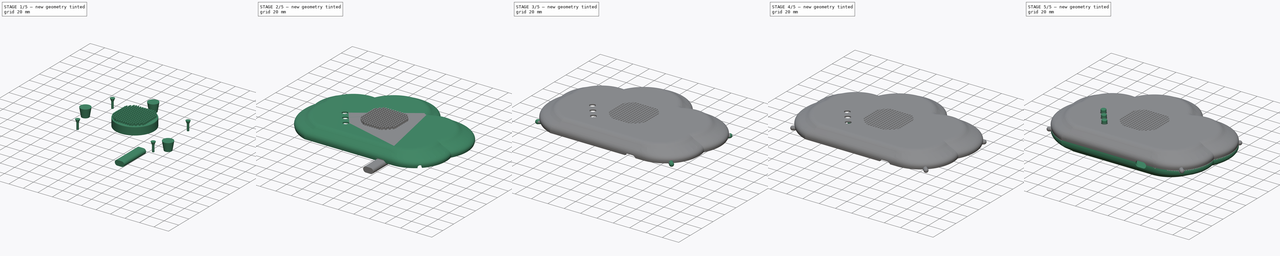
[diagram: build sequence overview — one tinted view per stage of 5, left to right]
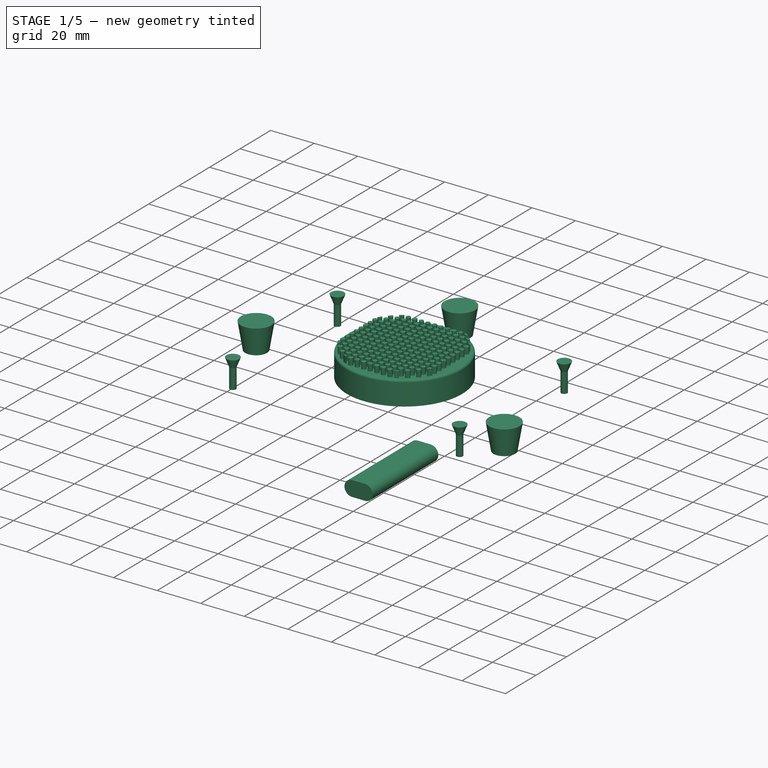
[diagram: stage 1 of 5 — iso view after this stage's code; geometry added in this stage tinted green]
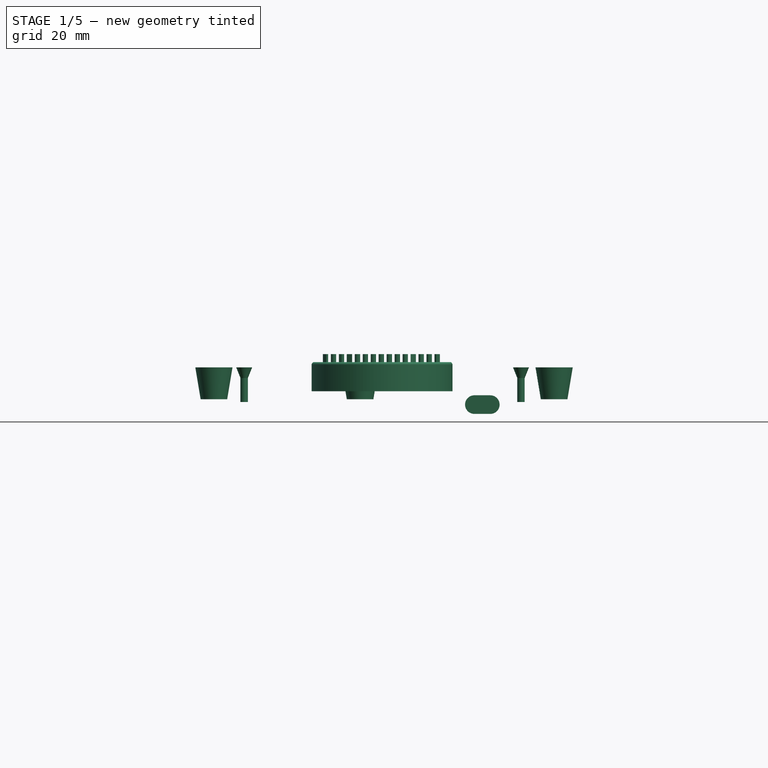
[diagram: stage 1 of 5 — front view after this stage's code; geometry added in this stage tinted green]
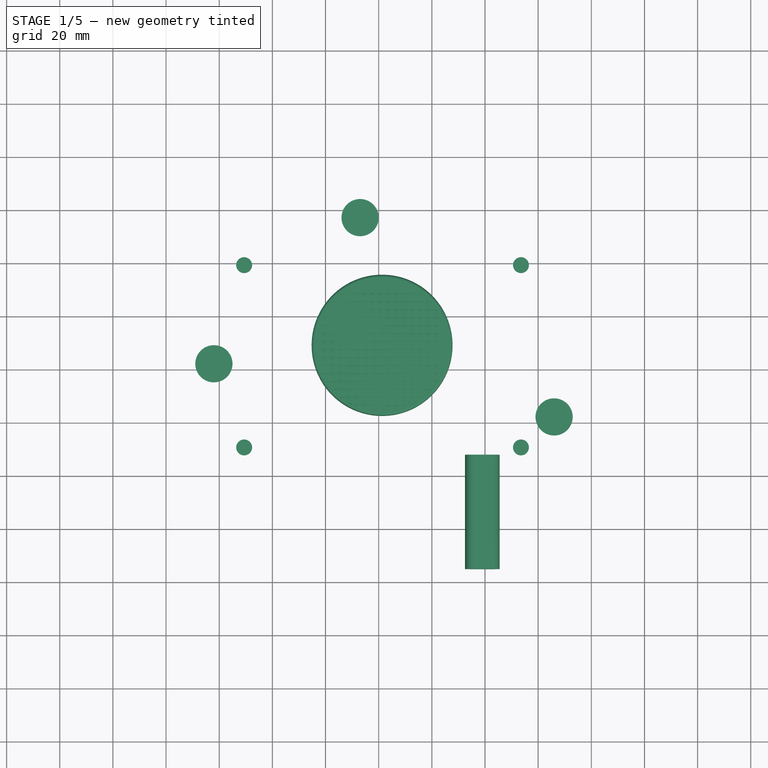
[diagram: stage 1 of 5 — top view after this stage's code; geometry added in this stage tinted green]
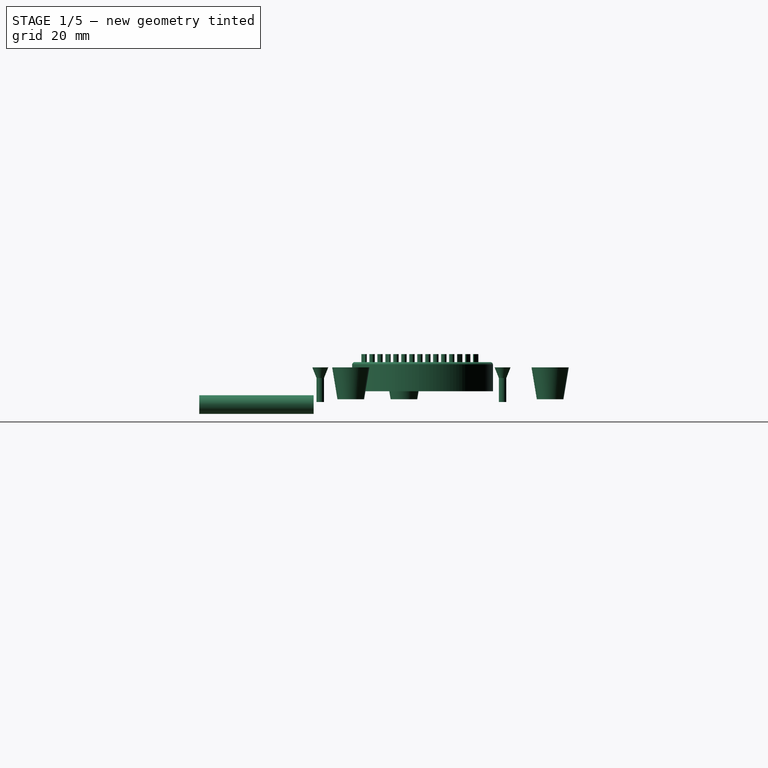
[diagram: stage 1 of 5 — right view after this stage's code; geometry added in this stage tinted green]
FCSTD DOCUMENT  (FreeCAD 0.20R0.20.2)
Label: id4
License: All rights reserved
LicenseURL: http://en.wikipedia.org/wiki/All_rights_reserved
objects: Part::Cylinder×29, Part::FeaturePython×25, Part::Fillet×18, Part::MultiFuse×18, Part::Cut×16, Part::Chamfer×16, Part::Compound×12, Part::Cone×11, Sketcher::SketchObject×8, Part::Box×8, PartDesign::Body×7, Part::Extrusion×6, PartDesign::FeatureBase×5, Part::Thickness×4, Part::Part2DObjectPython×3, Part::Mirroring×2, PartDesign::Boolean×2, Part::Feature×1, Part::Loft×1, PartDesign::Fillet×1, +2 more types
note: 195 computed .brp shape members not serialized (recipe doc carries the construction recipe); baked Part::Feature solids carry a one-line shape summary decoded from their .brp

FEATURE [Sketcher::SketchObject] Sketch001
  FullyConstrained = false
  sketch-geometry (20):
    g0: LineSegment StartX=-55 StartY=37 StartZ=0 EndX=55 EndY=37 EndZ=0
    g1: LineSegment StartX=55 StartY=37 StartZ=0 EndX=55 EndY=-37 EndZ=0
    g2: LineSegment StartX=55 StartY=-37 StartZ=0 EndX=-55 EndY=-37 EndZ=0
    g3: LineSegment StartX=-55 StartY=-37 StartZ=0 EndX=-55 EndY=37 EndZ=0
    g4: ArcOfCircle CenterX=44.9929 CenterY=-9.49778 CenterZ=0 NormalX=0 NormalY=0 NormalZ=1 AngleXU=0 Radius=33.7561 StartAngle=4.71239 EndAngle=6.52933
    g5: LineSegment StartX=-48.6446 StartY=-43.2539 StartZ=0 EndX=44.9929 EndY=-43.2539 EndZ=0
    g6: ArcOfCircle CenterX=-44.1232 CenterY=17.7701 CenterZ=0 NormalX=0 NormalY=0 NormalZ=1 AngleXU=0 Radius=33.7241 StartAngle=1.46841 EndAngle=3.31658
    g7: ArcOfCircle CenterX=-5.77626 CenterY=34.7155 CenterZ=0 NormalX=0 NormalY=0 NormalZ=1 AngleXU=0 Radius=38.6476 StartAngle=0.381366 EndAngle=2.69757
    g8: ArcOfCircle CenterX=46.324 CenterY=16.7365 CenterZ=0 NormalX=0 NormalY=0 NormalZ=1 AngleXU=0 Radius=36.2044 StartAngle=5.76256 EndAngle=8.31881
    g9: GeomPoint X=30.0948 Y=49.0997 Z=0
    g10: GeomPoint X=-40.6763 Y=51.3175 Z=0
    g11: ArcOfCircle CenterX=-35.0014 CenterY=-1.12013 CenterZ=0 NormalX=0 NormalY=0 NormalZ=1 AngleXU=0 Radius=44.2876 StartAngle=2.84322 EndAngle=4.39924
    g12: Circle CenterX=52.46 CenterY=34.46 CenterZ=0 NormalX=0 NormalY=0 NormalZ=1 AngleXU=0 Radius=1.524
    g13: LineSegment StartX=-55 StartY=37 StartZ=0 EndX=55 EndY=-37 EndZ=0
    g14: LineSegment StartX=-55 StartY=-37 StartZ=0 EndX=55 EndY=37 EndZ=0
    g15: Circle CenterX=-52.46 CenterY=34.46 CenterZ=0 NormalX=0 NormalY=0 NormalZ=1 AngleXU=0 Radius=1.524
    g16: Circle CenterX=-52.46 CenterY=-34.46 CenterZ=0 NormalX=0 NormalY=0 NormalZ=1 AngleXU=0 Radius=1.524
    g17: Circle CenterX=52.46 CenterY=-34.46 CenterZ=0 NormalX=0 NormalY=0 NormalZ=1 AngleXU=0 Radius=1.524
    g18: LineSegment StartX=-8.21505 StartY=73.2861 StartZ=0 EndX=-8.21505 EndY=-43.2539 EndZ=0
    g19: LineSegment StartX=82.4688 StartY=18.8131 StartZ=0 EndX=-77.8312 EndY=18.8131 EndZ=0
  constraints (47):
    c: Coincident(g0,g1)
    c: Coincident(g1,g2)
    c: Coincident(g2,g3)
    c: Coincident(g3,g0)
    c: Horizontal(g0)
    c: Horizontal(g2)
    c: Vertical(g1)
    c: Vertical(g3)
    c: Distance(g0) = 110
    c: Distance(g1) = 74
    c: Coincident(g11,g5) = -1.5708
    c: Tangent(g5,g4) = -1.5708
    c: Horizontal(g5)
    c: PointOnObject(g9,g8)
    c: PointOnObject(g9,g7)
    c: PointOnObject(g10,g7)
    c: PointOnObject(g10,g6)
    c: Coincident(g6,g11)
    c: Coincident(g4,g8)
    c: Coincident(g8,g7)
    c: Coincident(g7,g6)
    c: Diameter(g12) = 3.048
    c: Distance(g12,g1) = 2.54
    c: Distance(g12,g0) = 2.54
    c: Coincident(g13,g0)
    c: Coincident(g13,g1)
    c: Coincident(g14,g2)
    c: Coincident(g14,g0)
    c: PointOnObject(g-1,g14)
    c: PointOnObject(g-1,g13)
    c: Distance(g15,g0) = 2.54
    c: Distance(g15,g3) = 2.54
    c: Diameter(g15) = 3.048
    c: Diameter(g16) = 3.048
    c: Distance(g16,g2) = 2.54
    c: Distance(g16,g3) = 2.54
    c: Diameter(g17) = 3.048
    c: Distance(g17,g1) = 2.54
    c: Distance(g17,g2) = 2.54
    c: PointOnObject(g18,g7)
    c: PointOnObject(g18,g5)
    c: Vertical(g18)
    c: Distance(g18) = 116.54
    c: PointOnObject(g19,g8)
    c: PointOnObject(g19,g6)
    c: Horizontal(g19)
    c: Distance(g19) = 160.3
FEATURE [Part::Feature] Feature  label="Плата"
  Placement = pos=(-170,95,7) rot=(0,0,1;0rad)
  shape: bbox 109.2 x 73.67 x 17.65 mm, 7789 faces, 158 solids (baked)
FEATURE [Sketcher::SketchObject] Sketch
  ExternalGeometry = -> [Feature]
  FullyConstrained = false
  MapMode = 2
  Placement = pos=(-170,95,7) rot=(0,0,1;0rad)
  Support = -> [Feature]
  sketch-geometry (2):
    g0: GeomPoint X=119.319 Y=-55.8161 Z=0
    g1: Circle CenterX=119.383 CenterY=-55.8842 CenterZ=0 NormalX=0 NormalY=0 NormalZ=1 AngleXU=0 Radius=1.4
  constraints (1):
    c: Diameter(g1) = 2.8
FEATURE [Part::Extrusion] Extrude
  Base = -> Sketch
  Dir = (0,0,1)
  DirMode = 2
  FaceMakerClass = Part::FaceMakerBullseye
  LengthFwd = 13
  LengthRev = 0
  Placement = pos=(0,0,-5) rot=(0,0,1;0rad)
  Solid = true
  Symmetric = false
FEATURE [Part::Cone] Cone003  label="Конус003"
  Angle = 360
  AttacherType = Attacher::AttachEngine3D
  Height = 5
  Placement = pos=(-50.6174,39.1158,2) rot=(0,0,1;0rad)
  Radius1 = 3
  Radius2 = 1
FEATURE [Part::MultiFuse] Fusion006
  Shapes = -> [Cone003,Extrude]
FEATURE [Sketcher::SketchObject] Sketch004
  FullyConstrained = false
  MapMode = 2
  Placement = pos=(40,-49,12) rot=(1,0,0;1.5708rad)
  sketch-geometry (6):
    g0: ArcOfCircle CenterX=-3.00386 CenterY=0 CenterZ=0 NormalX=0 NormalY=0 NormalZ=1 AngleXU=0 Radius=3.5 StartAngle=1.5708 EndAngle=4.71239
    g1: ArcOfCircle CenterX=2.99652 CenterY=-3.5e-15 CenterZ=0 NormalX=0 NormalY=0 NormalZ=1 AngleXU=0 Radius=3.5 StartAngle=4.71239 EndAngle=7.85398
    g2: LineSegment StartX=-3.00386 StartY=-3.5 StartZ=0 EndX=2.99652 EndY=-3.5 EndZ=0
    g3: LineSegment StartX=2.99652 StartY=3.5 StartZ=0 EndX=-3.00386 EndY=3.5 EndZ=0
    g4: LineSegment StartX=-0.0553689 StartY=3.5 StartZ=0 EndX=-0.0553689 EndY=-3.5 EndZ=0
    g5: LineSegment StartX=-6.50367 StartY=0.0363217 StartZ=0 EndX=6.49633 EndY=0.0363217 EndZ=0
  constraints (15):
    c: Tangent(g0,g2) = -1.5708
    c: Tangent(g2,g1) = -1.5708
    c: Tangent(g1,g3) = -1.5708
    c: Tangent(g3,g0) = -1.5708
    c: Equal(g0,g1)
    c: Horizontal(g2)
    c: PointOnObject(g0,g-1)
    c: PointOnObject(g4,g3)
    c: PointOnObject(g4,g2)
    c: Vertical(g4)
    c: Distance(g4) = 7
    c: PointOnObject(g5,g0)
    c: PointOnObject(g5,g1)
    c: Horizontal(g5)
    c: Distance(g5) = 13
FEATURE [Part::Extrusion] Extrude003  label="Extrude006"
  Base = -> Sketch004
  Dir = (0,-1,2e-16)
  DirMode = 2
  FaceMakerClass = Part::FaceMakerBullseye
  LengthFwd = 43
  LengthRev = 0
  Placement = pos=(-1,17,2) rot=(0,0,1;0rad)
  Solid = true
  Symmetric = false
FEATURE [Part::Cone] Cone007  label="Конус007"
  Angle = 360
  AttacherType = Attacher::AttachEngine3D
  Height = 12
  Placement = pos=(-62,2,16) rot=(0,0,1;0rad)
  Radius1 = 5
  Radius2 = 7
FEATURE [Part::FeaturePython] Screw002  label="M3x10-Винт"  # Fasteners workbench fastener (typed FeaturePython)
  Placement = pos=(-62,2,15) rot=(0,1,0;3.14159rad)
  diameter = 1
  invert = false
  leftHanded = false
  length = 4
  lengthCustom = 10
  matchOuter = false
  offset = 0
  thread = true
  type = 22
FEATURE [Part::Cut] Cut007
  Base = -> Cone007
  Tool = -> Screw002
FEATURE [Part::Cone] Cone008  label="Конус008"
  Angle = 360
  AttacherType = Attacher::AttachEngine3D
  Height = 12
  Placement = pos=(-62,2,16) rot=(0,0,1;0rad)
  Radius1 = 5
  Radius2 = 7
FEATURE [Part::FeaturePython] Screw005  label="M3x10-Винт003"  # Fasteners workbench fastener (typed FeaturePython)
  Placement = pos=(-62,2,15) rot=(0,1,0;3.14159rad)
  diameter = 1
  invert = false
  leftHanded = false
  length = 4
  lengthCustom = 10
  matchOuter = false
  offset = 0
  thread = true
  type = 22
FEATURE [Part::Cut] Cut010
  Base = -> Cone008
  Placement = pos=(128,-20,0) rot=(0,0,1;0rad)
  Tool = -> Screw005
FEATURE [Part::Cone] Cone009  label="Конус009"
  Angle = 360
  AttacherType = Attacher::AttachEngine3D
  Height = 12
  Placement = pos=(-62,2,16) rot=(0,0,1;0rad)
  Radius1 = 5
  Radius2 = 7
FEATURE [Part::FeaturePython] Screw007  label="M3x10-Винт005"  # Fasteners workbench fastener (typed FeaturePython)
  Placement = pos=(-62,2,15) rot=(0,1,0;3.14159rad)
  diameter = 1
  invert = false
  leftHanded = false
  length = 4
  lengthCustom = 10
  matchOuter = false
  offset = 0
  thread = true
  type = 22
FEATURE [Part::Cut] Cut012
  Base = -> Cone009
  Placement = pos=(55,55,0) rot=(0,0,1;0rad)
  Tool = -> Screw007
FEATURE [Part::MultiFuse] Fusion012
  Shapes = -> [Cut012,Cut010,Cut007]
FEATURE [Part::FeaturePython] Clone009  label="Fusion015"  # Draft clone (typed FeaturePython)
  AttacherType = Attacher::AttachEngine3D
  Fuse = false
  Objects = -> [Fusion006]
  Scale = (1,1,1)
FEATURE [Part::Mirroring] Part__Mirroring001  label="Fusion015 (Mirror #2)"
  Base = (0,0,15)
  Normal = (0,0,1)
  Source = -> Clone009
FEATURE [PartDesign::FeatureBase] Clone010
  BaseFeature = -> Part__Mirroring001
  Placement = pos=(104.15,0,0) rot=(0,0,1;0rad)
FEATURE [PartDesign::Body] Body008  label="Body011"
  BaseFeature = -> Part__Mirroring001
  Group = -> [Clone010]
  Origin = -> Origin008
  Tip = -> Clone010
FEATURE [PartDesign::FeatureBase] Clone011
  BaseFeature = -> Part__Mirroring001
  Placement = pos=(104.15,-68.6,0) rot=(0,0,1;0rad)
FEATURE [PartDesign::Body] Body009  label="Body012"
  BaseFeature = -> Part__Mirroring001
  Group = -> [Clone011]
  Origin = -> Origin009
  Tip = -> Clone011
FEATURE [PartDesign::FeatureBase] Clone012
  BaseFeature = -> Part__Mirroring001
  Placement = pos=(0,-68.6,0) rot=(0,0,1;0rad)
FEATURE [PartDesign::Body] Body010  label="Body013"
  BaseFeature = -> Part__Mirroring001
  Group = -> [Clone012]
  Origin = -> Origin010
  Tip = -> Clone012
FEATURE [Part::Compound] Compound008
  Links = -> [Part__Mirroring001,Body008,Body009,Body010]
FEATURE [Sketcher::SketchObject] Sketch013
  FullyConstrained = true
  Placement = pos=(0,0,0) rot=(1,0,0;1.5708rad)
  sketch-geometry (10):
    g0: LineSegment StartX=0 StartY=0 StartZ=0 EndX=-25 EndY=0 EndZ=0
    g1: LineSegment StartX=-25 StartY=0 StartZ=0 EndX=-25 EndY=4 EndZ=0
    g2: LineSegment StartX=-25 StartY=4 StartZ=0 EndX=-23 EndY=4 EndZ=0
    g3: LineSegment StartX=-23 StartY=4 StartZ=0 EndX=-21 EndY=11 EndZ=0
    g4: LineSegment StartX=-21 StartY=11 StartZ=0 EndX=0 EndY=11 EndZ=0
    g5: LineSegment StartX=-21 StartY=11 StartZ=0 EndX=-21 EndY=0 EndZ=0
    g6: LineSegment StartX=-21 StartY=11 StartZ=0 EndX=-8 EndY=11 EndZ=0
    g7: LineSegment StartX=-8 StartY=11 StartZ=0 EndX=-8 EndY=17 EndZ=0
    g8: LineSegment StartX=-8 StartY=17 StartZ=0 EndX=0 EndY=17 EndZ=0
    g9: LineSegment StartX=0 StartY=17 StartZ=0 EndX=0 EndY=0 EndZ=0
  constraints (29):
    c: Coincident(g0,g-1)
    c: PointOnObject(g0,g-1)
    c: Coincident(g1,g0)
    c: Vertical(g1)
    c: Distance(g0) = 25
    c: Distance(g1) = 4
    c: Coincident(g2,g1)
    c: Horizontal(g2)
    c: Distance(g2) = 2
    c: Coincident(g3,g2)
    c: Coincident(g4,g3)
    c: PointOnObject(g4,g-2)
    c: Horizontal(g4)
    c: Distance(g4) = 21
    c: Coincident(g5,g3)
    c: PointOnObject(g5,g0)
    c: Vertical(g5)
    c: Distance(g5) = 11
    c: Coincident(g6,g3)
    c: PointOnObject(g6,g4)
    c: Distance(g6,g4) = 8
    c: Coincident(g7,g6)
    c: Vertical(g7)
    c: Distance(g7) = 6
    c: Coincident(g8,g7)
    c: Horizontal(g8)
    c: PointOnObject(g8,g-2)
    c: Coincident(g9,g8)
    c: Coincident(g9,g0)
FEATURE [Part::Revolution] Revolve
  Angle = 360
  Axis = (0,0,1)
  Base = (0,0,0)
  FaceMakerClass = Part::FaceMakerBullseye
  Solid = true
  Source = -> Sketch013
  Symmetric = false
FEATURE [Part::Fillet] Fillet017
  Base = -> Revolve
  Edges = 2 edges r=1: [Edge5,Edge8]
FEATURE [Part::Fillet] Fillet018
  Base = -> Fillet017
  Edges = 1 edges r=1: [Edge6]
FEATURE [Part::Fillet] Fillet019
  Base = -> Fillet018
  Edges = 1 edges r=2: [Edge8]
FEATURE [Part::Cone] Cone010  label="Конус010"
  Angle = 360
  AttacherType = Attacher::AttachEngine3D
  Height = 5
  Radius1 = 19
  Radius2 = 15
FEATURE [Part::Cut] Cut014
  Base = -> Fillet019
  Tool = -> Cone010
FEATURE [Part::Fillet] Fillet020  label="динамик"
  Base = -> Cut014
  Edges = 1 edges r=1: [Edge9]
  Placement = pos=(1.28,9,28) rot=(0,1,0;3.14159rad)
FEATURE [Sketcher::SketchObject] Sketch014
  FullyConstrained = true
  MapMode = 2
  Placement = pos=(1.28,9,28) rot=(0,1,0;3.14159rad)
  Support = -> [Fillet020]
  sketch-geometry (1):
    g0: Circle CenterX=0 CenterY=0 CenterZ=0 NormalX=0 NormalY=0 NormalZ=1 AngleXU=0 Radius=25.5
  constraints (2):
    c: Coincident(g0,g-1)
    c: Diameter(g0) = 51
FEATURE [Part::Extrusion] Extrude005  label="Extrude008"
  Base = -> Sketch014
  Dir = (0,1e-16,-1)
  DirMode = 2
  FaceMakerClass = Part::FaceMakerBullseye
  LengthFwd = 10
  LengthRev = 0
  Solid = true
  Symmetric = false
FEATURE [Part::Thickness] Thickness003
  Faces = -> Extrude005 [Face3]
  Intersection = false
  Join = 0
  Mode = 0
  SelfIntersection = false
  Value = 1
FEATURE [Part::Cylinder] Cylinder027  label="Цилиндр027"
  Angle = 360
  AttacherType = Attacher::AttachEngine3D
  FirstAngle = 0
  Height = 5
  Radius = 25
  SecondAngle = 0
FEATURE [Part::Cylinder] Cylinder028  label="Цилиндр028"
  Angle = 360
  AttacherType = Attacher::AttachEngine3D
  FirstAngle = 0
  Height = 10
  Radius = 1
  SecondAngle = 0
FEATURE [Part::FeaturePython] Array  # Draft array (typed FeaturePython)
  AlwaysSyncPlacement = false
  Angle = 360
  ArrayType = 0
  Axis = (0,0,1)
  Base = -> Cylinder028
  Center = (0,0,0)
  Count = 225
  ExpandArray = false
  Fuse = false
  IntervalAxis = (0,0,0)
  IntervalX = (3,0,0)
  IntervalY = (0,3,0)
  IntervalZ = (0,0,100)
  NumberCircles = 3
  NumberPolar = 5
  NumberX = 15
  NumberY = 15
  NumberZ = 1
  Placement = pos=(-21,-22,-2) rot=(0,0,1;0rad)
  PlacementList = 225 placements: [(0,0,0),(0,3,0),(0,6,0),(0,9,0),(0,12,0),(0,15,0),(0,18,0),(0,21,0),(0,24,0),(0,27,0),(0,30,0),(0,33,0),(0,36,0),(0,39,0),(0,42,0),(3,0,0),(3,3,0),(3,6,0),(3,9,0),(3,12,0),(3,15,0),(3,18,0),(3,21,0),(3,24,0),(3,27,0),(3,30,0),(3,33,0),(3,36,0),(3,39,0),(3,42,0),(6,0,0),(6,3,0),(6,6,0),(6,9,0),(6,12,0),(6,15,0),(6,18,0),(6,21,0),(6,24,0),(6,27,0),(6,30,0),(6,33,0),(6,36,0),(6,39,0),(6,42,0),+180 more]
  RadialDistance = 50
  ScaleList = (225) [(1,1,1),(1,1,1),(1,1,1),(1,1,1),(1,1,1),(1,1,1),(1,1,1),(1,1,1),(1,1,1),(1,1,1),(1,1,1),(1,1,1),(1,1,1),(1,1,1),(1,1,1),(1,1,1),(1,1,1),(1,1,1),+207 more]
  Symmetry = 1
  TangentialDistance = 25
FEATURE [Part::MultiCommon] Common
  Placement = pos=(1,9,28) rot=(0,0,1;0rad)
  Shapes = -> [Cylinder027,Array]
FEATURE [Part::FeaturePython] Clone013  label="Common001"  # Draft clone (typed FeaturePython)
  AttacherType = Attacher::AttachEngine3D
  Fuse = false
  Objects = -> [Common]
  Placement = pos=(1,9,28) rot=(0,0,1;0rad)
  Scale = (1,1,1)
FEATURE [Part::Cut] Cut016
  Base = -> Thickness003
  Placement = pos=(0,0,1) rot=(0,0,1;0rad)
  Tool = -> Common
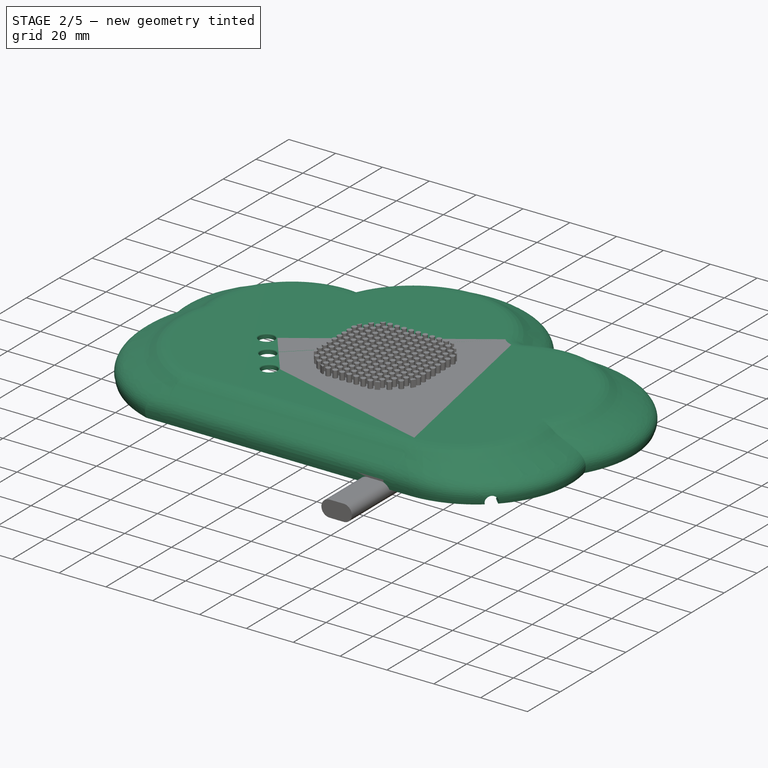
[diagram: stage 2 of 5 — iso view after this stage's code; geometry added in this stage tinted green]
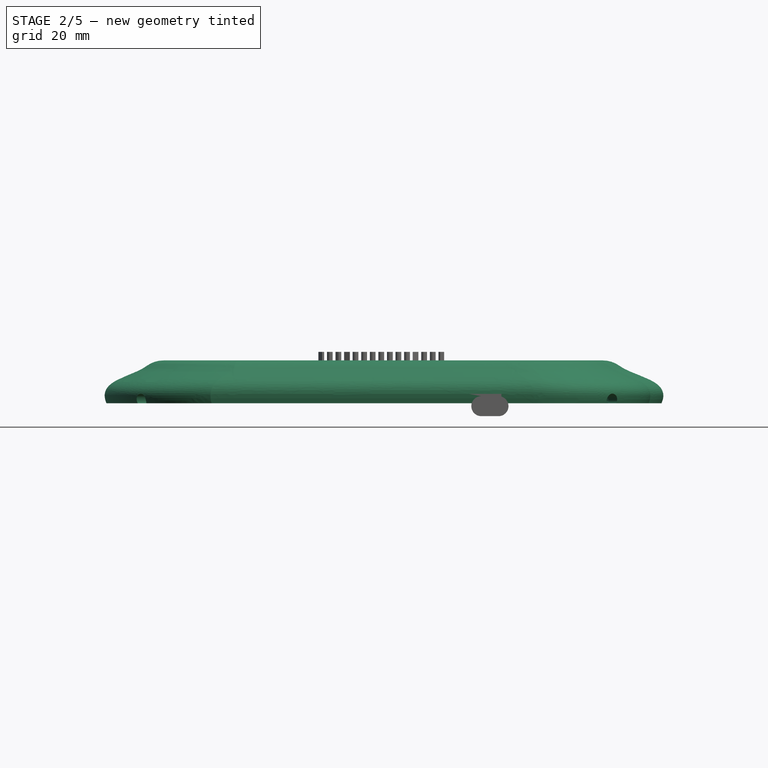
[diagram: stage 2 of 5 — front view after this stage's code; geometry added in this stage tinted green]
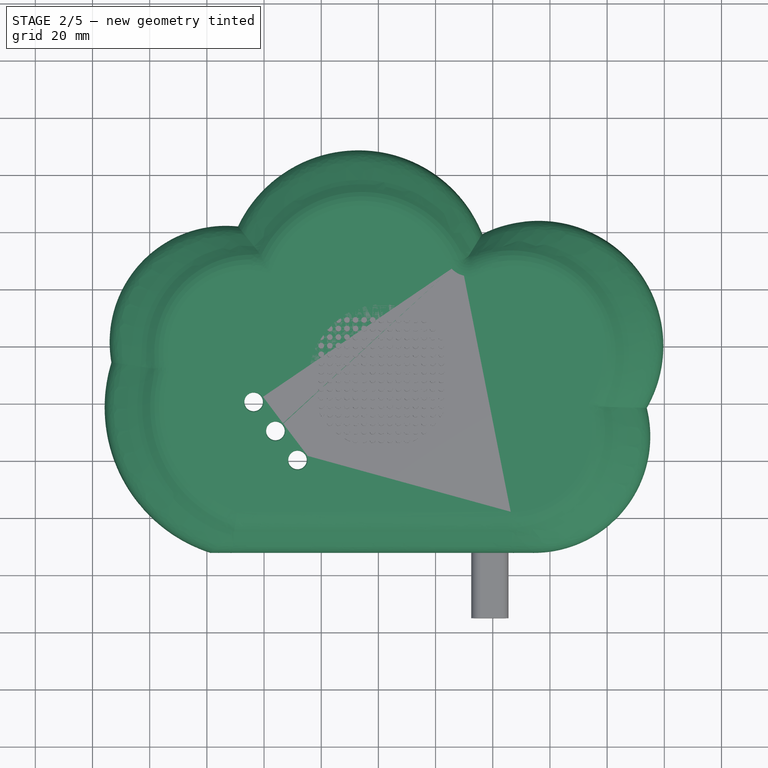
[diagram: stage 2 of 5 — top view after this stage's code; geometry added in this stage tinted green]
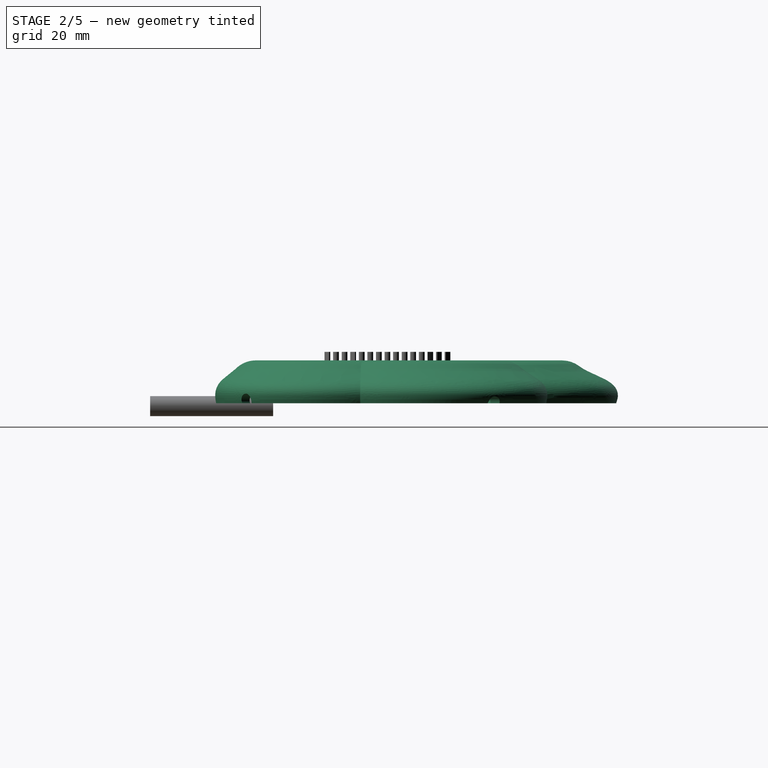
[diagram: stage 2 of 5 — right view after this stage's code; geometry added in this stage tinted green]
FEATURE [Part::Part2DObjectPython] Clone2D005  label="Sketch001 (2D)005"  # Draft 2D object (typed FeaturePython)
  Fuse = false
  Objects = -> [Sketch001]
  Placement = pos=(0,0,5) rot=(0,0,1;0rad)
  Scale = (1.1,1.1,1.1)
FEATURE [Part::Part2DObjectPython] Clone2D006  label="Sketch001 (2D)006"  # Draft 2D object (typed FeaturePython)
  Fuse = false
  Objects = -> [Sketch001]
  Placement = pos=(0,0,10) rot=(0,0,1;0rad)
  Scale = (1.2,1.2,1.2)
FEATURE [Part::Part2DObjectPython] Clone2D007  label="Sketch001 (2D)006 (2D)"  # Draft 2D object (typed FeaturePython)
  Fuse = false
  Objects = -> [Clone2D006]
  Placement = pos=(0,0,15) rot=(0,0,1;0rad)
  Scale = (1,1,1)
FEATURE [Part::Loft] Loft
  Closed = false
  MaxDegree = 5
  Ruled = false
  Sections = -> [Sketch001,Clone2D005,Clone2D006,Clone2D007]
  Solid = true
FEATURE [PartDesign::FeatureBase] BaseFeature
  BaseFeature = -> Loft
FEATURE [PartDesign::Fillet] Fillet
  Base = -> BaseFeature [Face7]
  BaseFeature = -> BaseFeature
  Radius = 10
  SupportTransform = false
  UseAllEdges = false
FEATURE [PartDesign::Body] Body
  BaseFeature = -> Loft
  Group = -> [BaseFeature,Fillet]
  Origin = -> Origin
  Tip = -> Fillet
FEATURE [Part::FeaturePython] Clone  label="Body001"  # Draft clone (typed FeaturePython)
  AttacherType = Attacher::AttachEngine3D
  Fuse = false
  Objects = -> [Body]
  Placement = pos=(0,0,2) rot=(0,0,1;0rad)
  Scale = (0.95,0.95,0.95)
FEATURE [Part::Cut] Cut
  Base = -> Body
  Tool = -> Clone
FEATURE [Part::Mirroring] Part__Mirroring  label="Cut (Mirror #1)"
  Base = (0,0,20)
  Normal = (0,0,1)
  Placement = pos=(0,0,-10) rot=(0,0,1;0rad)
  Source = -> Cut
FEATURE [PartDesign::FeatureBase] BaseFeature001
  BaseFeature = -> Part__Mirroring
FEATURE [PartDesign::Body] Body001  label="Крышка"
  BaseFeature = -> Part__Mirroring
  Group = -> [BaseFeature001]
  Origin = -> Origin001
  Placement = pos=(0,0,-10) rot=(0,0,1;0rad)
  Tip = -> BaseFeature001
FEATURE [Part::Cylinder] Cylinder  label="Цилиндр"
  Angle = 360
  AttacherType = Attacher::AttachEngine3D
  FirstAngle = 0
  Height = 22
  Placement = pos=(-43.635,0.385,10.17) rot=(0,0,1;0rad)
  Radius = 3
  SecondAngle = 0
FEATURE [Part::Cylinder] Cylinder001  label="Цилиндр001"
  Angle = 360
  AttacherType = Attacher::AttachEngine3D
  FirstAngle = 0
  Height = 7
  Placement = pos=(-43.64,0.39,27.17) rot=(0,0,1;0rad)
  Radius = 3
  SecondAngle = 0
FEATURE [Part::Fillet] Fillet001
  Base = -> Cylinder001
  Edges = 1 edges r=1: [Edge3]
FEATURE [Part::Fillet] Fillet002
  Base = -> Cylinder
  Edges = 1 edges r=0.5: [Edge2]
FEATURE [Part::Cone] Cone  label="Конус"
  Angle = 360
  AttacherType = Attacher::AttachEngine3D
  Height = 10
  Placement = pos=(-43.64,0.39,17.17) rot=(0,0,1;0rad)
  Radius1 = 3
  Radius2 = 4
FEATURE [Part::MultiFuse] Fusion001  label="кнопка 1"
  Shapes = -> [Fillet001,Fillet002,Cone]
FEATURE [Part::Cone] Cone001  label="Конус001"
  Angle = 360
  AttacherType = Attacher::AttachEngine3D
  Height = 10
  Placement = pos=(-43.64,0.39,17.17) rot=(0,0,1;0rad)
  Radius1 = 3
  Radius2 = 4
FEATURE [Part::Cylinder] Cylinder002  label="Цилиндр002"
  Angle = 360
  AttacherType = Attacher::AttachEngine3D
  FirstAngle = 0
  Height = 22
  Placement = pos=(-43.635,0.385,10.17) rot=(0,0,1;0rad)
  Radius = 3
  SecondAngle = 0
FEATURE [Part::Cylinder] Cylinder003  label="Цилиндр003"
  Angle = 360
  AttacherType = Attacher::AttachEngine3D
  FirstAngle = 0
  Height = 7
  Placement = pos=(-43.64,0.39,27.17) rot=(0,0,1;0rad)
  Radius = 3
  SecondAngle = 0
FEATURE [Part::Fillet] Fillet003
  Base = -> Cylinder003
  Edges = 1 edges r=1: [Edge3]
FEATURE [Part::Fillet] Fillet004
  Base = -> Cylinder002
  Edges = 1 edges r=0.5: [Edge2]
FEATURE [Part::MultiFuse] Fusion002  label="кнопка 2"
  Placement = pos=(7.62,-10.16,0) rot=(0,0,1;0rad)
  Shapes = -> [Fillet003,Fillet004,Cone001]
FEATURE [Part::Cone] Cone002  label="Конус002"
  Angle = 360
  AttacherType = Attacher::AttachEngine3D
  Height = 10
  Placement = pos=(-43.64,0.39,17.17) rot=(0,0,1;0rad)
  Radius1 = 3
  Radius2 = 4
FEATURE [Part::Cylinder] Cylinder004  label="Цилиндр004"
  Angle = 360
  AttacherType = Attacher::AttachEngine3D
  FirstAngle = 0
  Height = 22
  Placement = pos=(-43.635,0.385,10.17) rot=(0,0,1;0rad)
  Radius = 3
  SecondAngle = 0
FEATURE [Part::Cylinder] Cylinder005  label="Цилиндр005"
  Angle = 360
  AttacherType = Attacher::AttachEngine3D
  FirstAngle = 0
  Height = 7
  Placement = pos=(-43.64,0.39,27.17) rot=(0,0,1;0rad)
  Radius = 3
  SecondAngle = 0
FEATURE [Part::Fillet] Fillet005
  Base = -> Cylinder005
  Edges = 1 edges r=1: [Edge3]
FEATURE [Part::Fillet] Fillet006
  Base = -> Cylinder004
  Edges = 1 edges r=0.5: [Edge2]
FEATURE [Part::MultiFuse] Fusion003  label="кнопка 3"
  Placement = pos=(15.342,-20.315,0) rot=(0,0,1;0rad)
  Shapes = -> [Fillet005,Fillet006,Cone002]
FEATURE [Sketcher::SketchObject] Sketch002
  ExternalGeometry = -> [Fusion001,Fusion002,Fusion003]
  FullyConstrained = true
  MapMode = 5
  Placement = pos=(0,0,34.17) rot=(0,0,1;0rad)
  Support = -> [Fusion001]
  sketch-geometry (3):
    g0: Circle CenterX=-43.64 CenterY=0.39 CenterZ=0 NormalX=0 NormalY=0 NormalZ=1 AngleXU=0 Radius=3.25
    g1: Circle CenterX=-28.298 CenterY=-19.925 CenterZ=0 NormalX=0 NormalY=0 NormalZ=1 AngleXU=0 Radius=3.25
    g2: Circle CenterX=-36.02 CenterY=-9.77 CenterZ=0 NormalX=0 NormalY=0 NormalZ=1 AngleXU=0 Radius=3.25
  constraints (6):
    c: Coincident(g0,g-3)
    c: Coincident(g1,g-5)
    c: Coincident(g2,g-4)
    c: Diameter(g0) = 6.5
    c: Diameter(g2) = 6.5
    c: Diameter(g1) = 6.5
FEATURE [Part::Extrusion] Extrude001  label="Extrude004"
  Base = -> Sketch002
  Dir = (0,0,1)
  DirMode = 2
  FaceMakerClass = Part::FaceMakerBullseye
  LengthFwd = 10
  LengthRev = 0
  Placement = pos=(0,0,-8) rot=(0,0,1;0rad)
  Solid = true
  Symmetric = false
FEATURE [Part::Cut] Cut001  label="Крышка001"
  Base = -> Body001
  Tool = -> Extrude001
FEATURE [Part::Fillet] Fillet007  label="крышка"
  Base = -> Cut001
  Edges = 3 edges r=0.5: [Edge38,Edge39,Edge40]
FEATURE [Part::Cylinder] Cylinder011  label="Цилиндр011"
  Angle = 360
  AttacherType = Attacher::AttachEngine3D
  FirstAngle = 0
  Height = 16
  Placement = pos=(-6.89,92.95,14.89) rot=(1,0,0;1.5708rad)
  Radius = 2.5
  SecondAngle = 0
FEATURE [Part::Cylinder] Cylinder012  label="Цилиндр012"
  Angle = 360
  AttacherType = Attacher::AttachEngine3D
  FirstAngle = 0
  Height = 16
  Placement = pos=(95.11,48.95,14.89) rot=(0.851836,-0.370389,-0.370389;1.73047rad)
  Radius = 2.5
  SecondAngle = 0
FEATURE [Part::Cylinder] Cylinder013  label="Цилиндр013"
  Angle = 360
  AttacherType = Attacher::AttachEngine3D
  FirstAngle = 0
  Height = 16
  Placement = pos=(-83.89,53.95,14.89) rot=(0.8634,0.35675,0.35675;1.71715rad)
  Radius = 2.5
  SecondAngle = 0
FEATURE [Part::Cylinder] Cylinder014  label="Цилиндр014"
  Angle = 360
  AttacherType = Attacher::AttachEngine3D
  FirstAngle = 0
  Height = 16
  Placement = pos=(-86.89,-39,15.89) rot=(0.313789,0.671393,0.671393;2.53348rad)
  Radius = 2.5
  SecondAngle = 0
FEATURE [Part::Cylinder] Cylinder015  label="Цилиндр015"
  Angle = 360
  AttacherType = Attacher::AttachEngine3D
  FirstAngle = 0
  Height = 16
  Placement = pos=(75.11,-35,15.89) rot=(0.857931,0.363287,0.363287;1.72343rad)
  Radius = 2.5
  SecondAngle = 0
FEATURE [Part::Compound] Compound003
  Links = -> [Cylinder011,Cylinder012,Cylinder013,Cylinder014,Cylinder015]
FEATURE [Part::Cut] Cut003  label="крышка001"
  Base = -> Fillet007
  Tool = -> Compound003
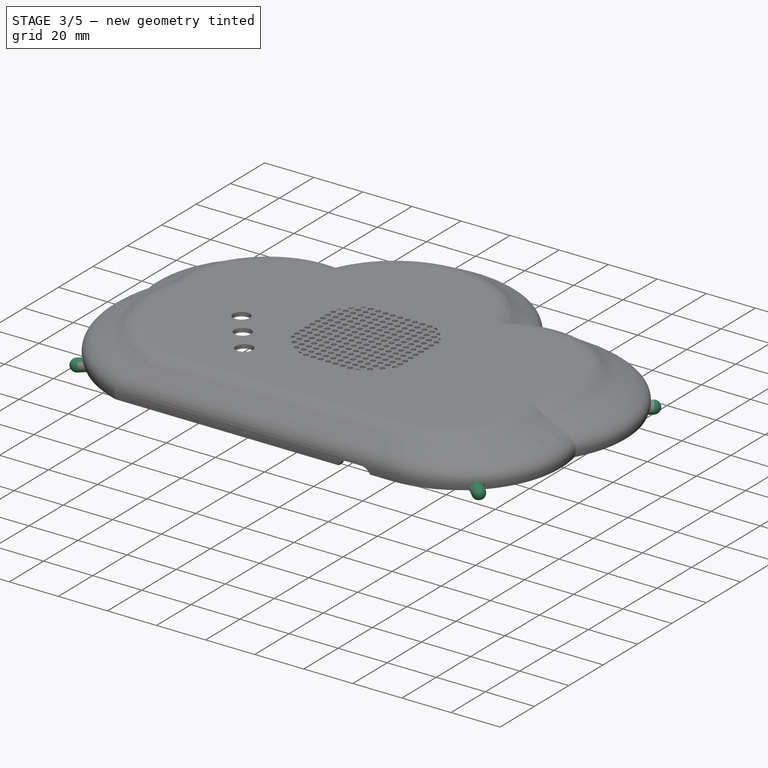
[diagram: stage 3 of 5 — iso view after this stage's code; geometry added in this stage tinted green]
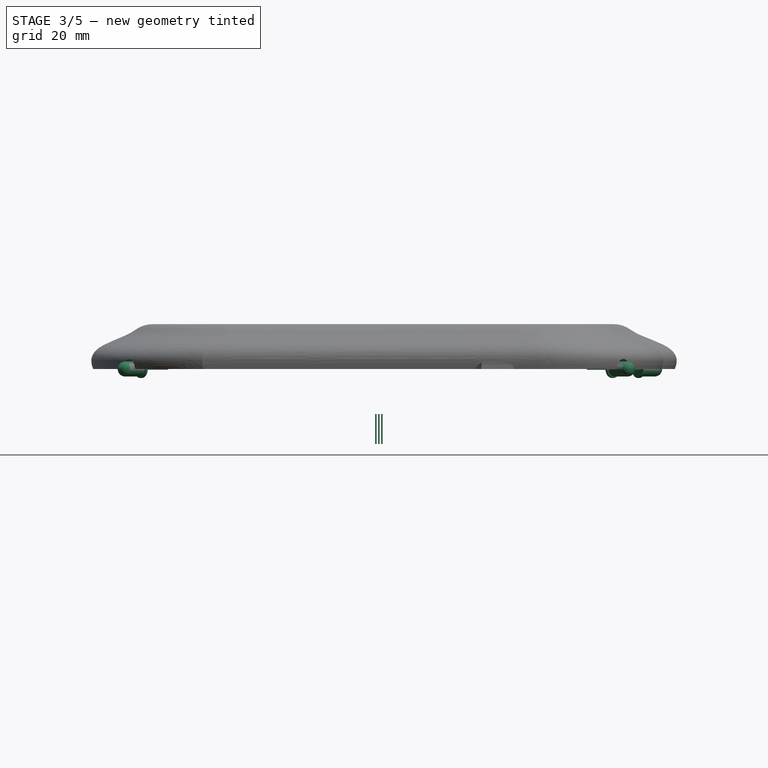
[diagram: stage 3 of 5 — front view after this stage's code; geometry added in this stage tinted green]
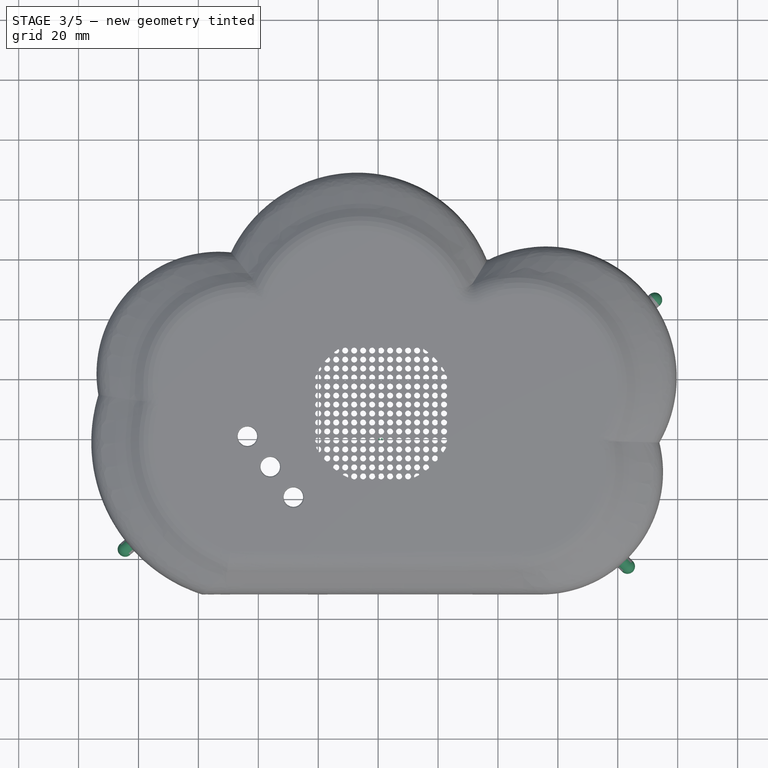
[diagram: stage 3 of 5 — top view after this stage's code; geometry added in this stage tinted green]
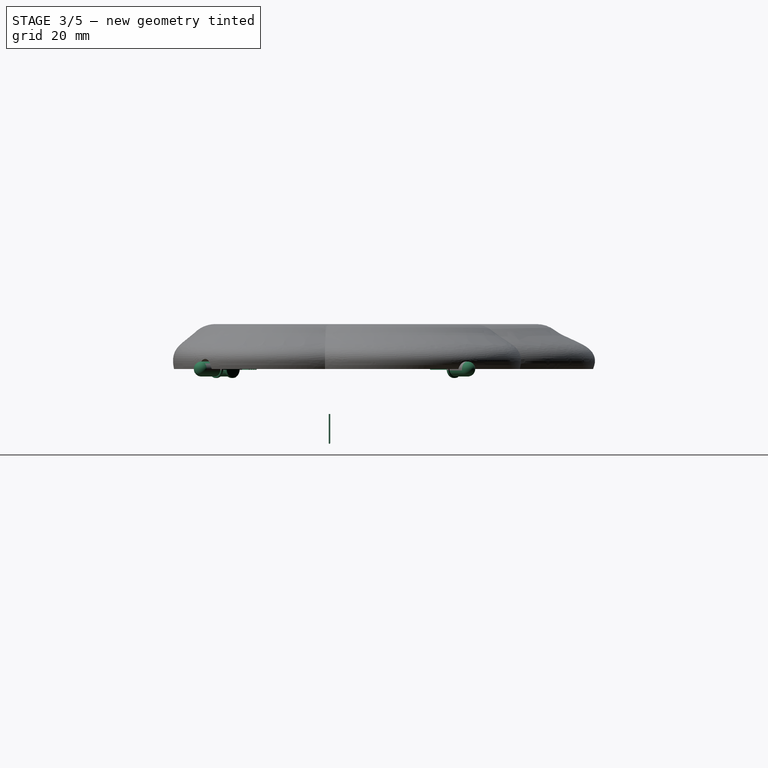
[diagram: stage 3 of 5 — right view after this stage's code; geometry added in this stage tinted green]
FEATURE [Part::Cut] Cut005  label="крышка002"
  Base = -> Cut003
  Tool = -> Extrude003
FEATURE [Part::FeaturePython] Connect001  label="крышка003"  # WARN: FeaturePython — macro-defined, semantics opaque (R4)
  Objects = -> [Fusion012,Cut005]
  Tolerance = 0
FEATURE [Part::Cylinder] Cylinder019  label="Цилиндр019"
  Angle = 360
  AttacherType = Attacher::AttachEngine3D
  FirstAngle = 0
  Height = 10
  Radius = 2.5
  SecondAngle = 0
FEATURE [Part::Fillet] Fillet011
  Base = -> Cylinder019
  Edges = 1 edges r=2.5: [Edge3]
FEATURE [Part::Cylinder] Cylinder020  label="Цилиндр020"
  Angle = 360
  AttacherType = Attacher::AttachEngine3D
  FirstAngle = 0
  Height = 1
  Radius = 3
  SecondAngle = 0
FEATURE [Part::Box] Box  label="Куб"
  AttacherType = Attacher::AttachEngine3D
  Height = 10
  Length = 0.5
  Placement = pos=(-2,-0.25,-10) rot=(0,0,1;0rad)
  Width = 0.5
FEATURE [Part::Fillet] Fillet012
  Base = -> Cylinder020
  Edges = 2 edges r=0.2: [Edge2,Edge3]
FEATURE [Part::Chamfer] Chamfer
  Base = -> Box
  Edges = 1 edges r=0.2: [Edge9]
FEATURE [Part::Chamfer] Chamfer001
  Base = -> Chamfer
  Edges = 1 edges r=0.2: [Edge14]
FEATURE [Part::Box] Box001  label="Куб001"
  AttacherType = Attacher::AttachEngine3D
  Height = 10
  Length = 0.5
  Placement = pos=(-2,-0.25,-10) rot=(0,0,1;0rad)
  Width = 0.5
FEATURE [Part::Chamfer] Chamfer002
  Base = -> Box001
  Edges = 1 edges r=0.2: [Edge9]
FEATURE [Part::Chamfer] Chamfer003
  Base = -> Chamfer002
  Edges = 1 edges r=0.2: [Edge14]
  Placement = pos=(1,0,0) rot=(0,0,1;0rad)
FEATURE [Part::Box] Box002  label="Куб002"
  AttacherType = Attacher::AttachEngine3D
  Height = 10
  Length = 0.5
  Placement = pos=(-2,-0.25,-10) rot=(0,0,1;0rad)
  Width = 0.5
FEATURE [Part::Chamfer] Chamfer004
  Base = -> Box002
  Edges = 1 edges r=0.2: [Edge9]
FEATURE [Part::Chamfer] Chamfer005
  Base = -> Chamfer004
  Edges = 1 edges r=0.2: [Edge14]
  Placement = pos=(2,0,0) rot=(0,0,1;0rad)
FEATURE [Part::Box] Box003  label="Куб003"
  AttacherType = Attacher::AttachEngine3D
  Height = 10
  Length = 0.5
  Placement = pos=(-2,-0.25,-10) rot=(0,0,1;0rad)
  Width = 0.5
FEATURE [Part::Chamfer] Chamfer006
  Base = -> Box003
  Edges = 1 edges r=0.2: [Edge9]
FEATURE [Part::Chamfer] Chamfer007
  Base = -> Chamfer006
  Edges = 1 edges r=0.2: [Edge14]
  Placement = pos=(3,0,0) rot=(0,0,1;0rad)
FEATURE [Part::MultiFuse] Fusion013
  Placement = pos=(0.25,0,0) rot=(0,0,1;0rad)
  Shapes = -> [Chamfer007,Chamfer001,Chamfer003,Chamfer005]
FEATURE [Part::Compound] Compound005
  Links = -> [Fusion013,Fillet012,Fillet011]
  Placement = pos=(-77.1,55.03,21.17) rot=(-0.281085,0.678598,0.678598;3.68962rad)
FEATURE [PartDesign::Boolean] Boolean
  Group = -> [Chamfer,Chamfer002,Fillet011,Chamfer003,Chamfer004,Compound005,Cylinder020,Chamfer005,Chamfer006,Chamfer007,Fusion013,Fillet012,Box,Cylinder019,Box001,Box002,Box003,Chamfer001]
  Placement = pos=(0.103385,-7.99159,-6.17) rot=(0,0,1;0rad)
  Type = 0
FEATURE [Part::Box] Box005  label="Куб005"
  AttacherType = Attacher::AttachEngine3D
  Height = 10
  Length = 0.5
  Placement = pos=(-2,-0.25,-10) rot=(0,0,1;0rad)
  Width = 0.5
FEATURE [Part::Box] Box006  label="Куб006"
  AttacherType = Attacher::AttachEngine3D
  Height = 10
  Length = 0.5
  Placement = pos=(-2,-0.25,-10) rot=(0,0,1;0rad)
  Width = 0.5
FEATURE [Part::Box] Box007  label="Куб007"
  AttacherType = Attacher::AttachEngine3D
  Height = 10
  Length = 0.5
  Placement = pos=(-2,-0.25,-10) rot=(0,0,1;0rad)
  Width = 0.5
FEATURE [Part::Chamfer] Chamfer010
  Base = -> Box005
  Edges = 1 edges r=0.2: [Edge9]
FEATURE [Part::Chamfer] Chamfer011
  Base = -> Chamfer010
  Edges = 1 edges r=0.2: [Edge14]
  Placement = pos=(1,0,0) rot=(0,0,1;0rad)
FEATURE [Part::Chamfer] Chamfer012
  Base = -> Box006
  Edges = 1 edges r=0.2: [Edge9]
FEATURE [Part::Chamfer] Chamfer013
  Base = -> Chamfer012
  Edges = 1 edges r=0.2: [Edge14]
  Placement = pos=(2,0,0) rot=(0,0,1;0rad)
FEATURE [Part::Chamfer] Chamfer014
  Base = -> Box007
  Edges = 1 edges r=0.2: [Edge9]
FEATURE [Part::Chamfer] Chamfer015
  Base = -> Chamfer014
  Edges = 1 edges r=0.2: [Edge14]
  Placement = pos=(3,0,0) rot=(0,0,1;0rad)
FEATURE [PartDesign::Body] Body007
  Group = -> [Boolean001]
  Origin = -> Origin007
  Placement = pos=(13.05,12.49,1.5) rot=(0,0,-1;0.802851rad)
  Tip = -> Boolean001
FEATURE [Part::FeaturePython] Clone006  label="Body008"  # Draft clone (typed FeaturePython)
  AttacherType = Attacher::AttachEngine3D
  Fuse = false
  Objects = -> [Body006]
  Placement = pos=(33,-31.3,0) rot=(0,0,-1;1.65806rad)
  Scale = (1,1,1)
FEATURE [Part::FeaturePython] Clone007  label="Body009"  # Draft clone (typed FeaturePython)
  AttacherType = Attacher::AttachEngine3D
  Fuse = false
  Objects = -> [Body006]
  Placement = pos=(-26.5,41.35,0) rot=(0,0,1;1.50098rad)
  Scale = (1,1,1)
FEATURE [Part::FeaturePython] Clone008  label="Body010"  # Draft clone (typed FeaturePython)
  AttacherType = Attacher::AttachEngine3D
  Fuse = false
  Objects = -> [Body006]
  Placement = pos=(0.944556,9.54433,0) rot=(0,0,1;3.14159rad)
  Scale = (1,1,1)
FEATURE [Part::MultiFuse] Fusion016  label="крышка004"
  Shapes = -> [Compound008,Connect001]
FEATURE [Part::Cut] Cut015  label="крышка005"
  Base = -> Fusion016
  Tool = -> Clone013
FEATURE [Part::MultiFuse] Fusion017  label="крышка006"
  Shapes = -> [Cut015,Cut016]
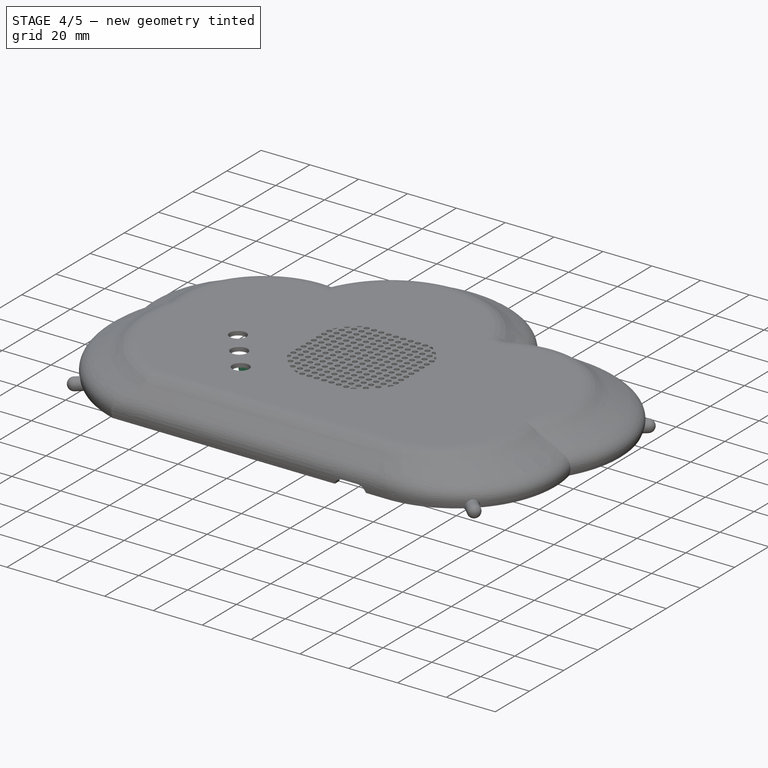
[diagram: stage 4 of 5 — iso view after this stage's code; geometry added in this stage tinted green]
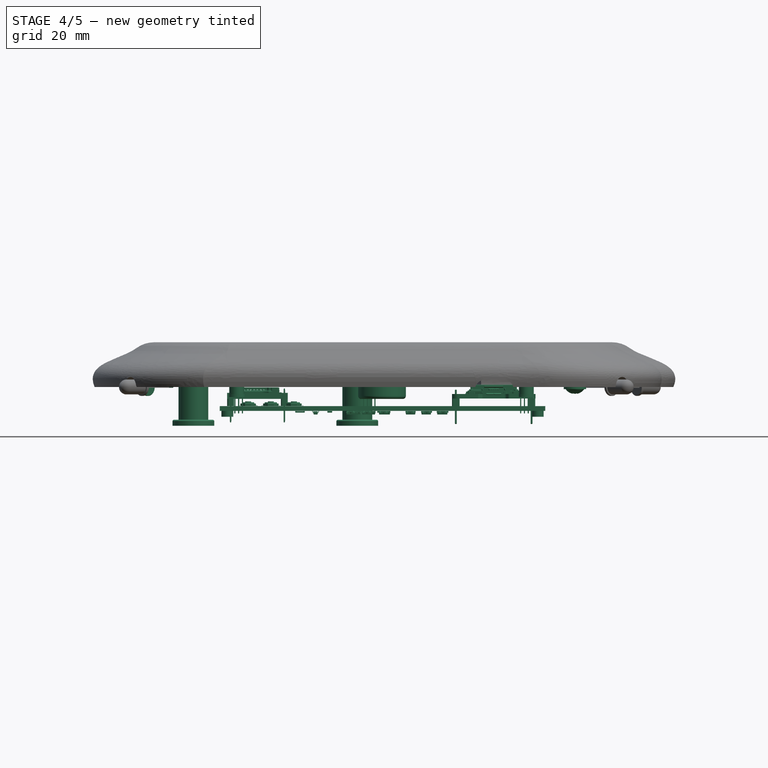
[diagram: stage 4 of 5 — front view after this stage's code; geometry added in this stage tinted green]
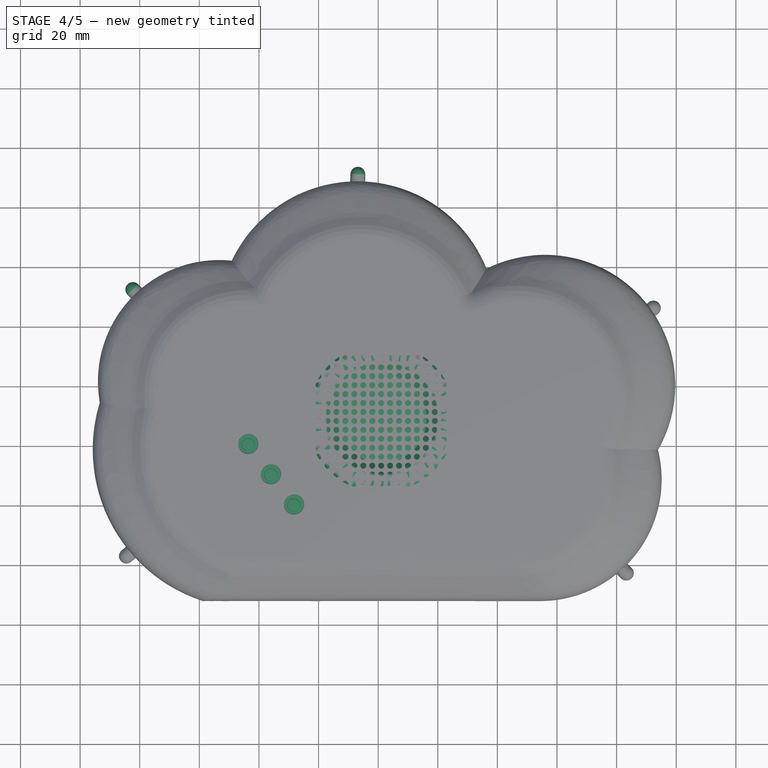
[diagram: stage 4 of 5 — top view after this stage's code; geometry added in this stage tinted green]
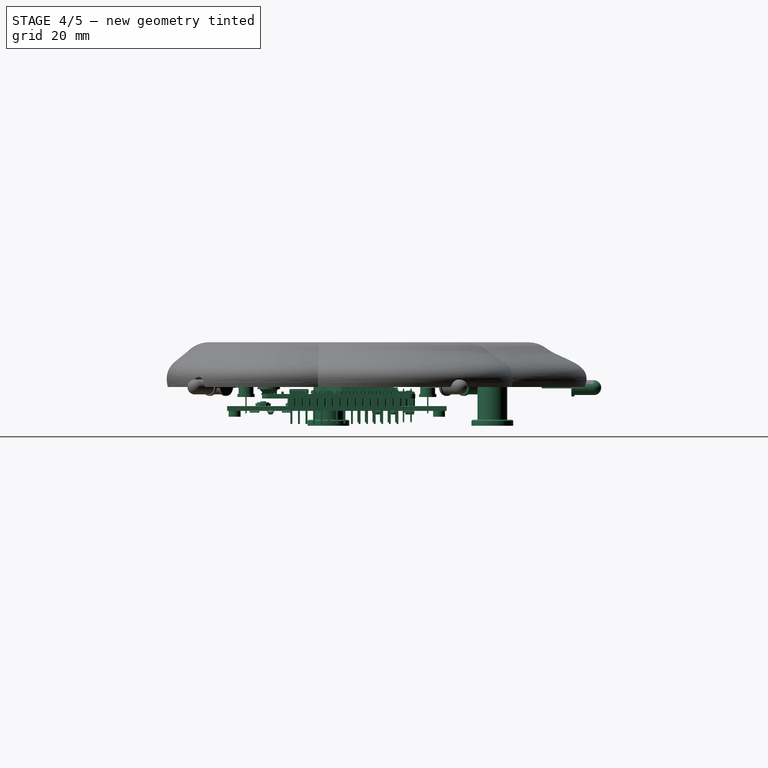
[diagram: stage 4 of 5 — right view after this stage's code; geometry added in this stage tinted green]
FEATURE [Part::FeaturePython] Screw001  label="M3x8-Винт"  # Fasteners workbench fastener (typed FeaturePython)
  Placement = pos=(-62,2,15) rot=(0,1,0;3.14159rad)
  diameter = 1
  invert = false
  leftHanded = false
  length = 3
  lengthCustom = 8
  matchOuter = false
  offset = 0
  thread = true
  type = 22
FEATURE [Part::Cylinder] Cylinder017  label="Цилиндр017"
  Angle = 360
  AttacherType = Attacher::AttachEngine3D
  FirstAngle = 0
  Height = 13
  Placement = pos=(0,0,2) rot=(0,0,1;0rad)
  Radius = 4
  SecondAngle = 0
FEATURE [Part::FeaturePython] Screw004  label="M3x10-Винт002"  # Fasteners workbench fastener (typed FeaturePython)
  Placement = pos=(-62,2,15) rot=(0,1,0;3.14159rad)
  diameter = 1
  invert = false
  leftHanded = false
  length = 4
  lengthCustom = 10
  matchOuter = false
  offset = 0
  thread = true
  type = 22
FEATURE [Part::Thickness] Thickness001
  Faces = -> Cylinder017 [Face2]
  Intersection = false
  Join = 2
  Mode = 0
  SelfIntersection = false
  Value = 1
FEATURE [Part::FeaturePython] Tube001  # WARN: FeaturePython — macro-defined, semantics opaque (R4)
  AttacherType = Attacher::AttachEngine3D
  Height = 2
  InnerRadius = 4
  OuterRadius = 7
  Placement = pos=(0,0,2) rot=(0,0,1;0rad)
FEATURE [Part::MultiFuse] Fusion009
  Placement = pos=(-62,2,0) rot=(0,0,1;0rad)
  Shapes = -> [Tube001,Thickness001]
FEATURE [Part::Fillet] Fillet009
  Base = -> Fusion009
  Edges = 1 edges r=0.5: [Edge8]
FEATURE [Part::Cylinder] Cylinder018  label="Цилиндр018"
  Angle = 360
  AttacherType = Attacher::AttachEngine3D
  FirstAngle = 0
  Height = 13
  Placement = pos=(0,0,2) rot=(0,0,1;0rad)
  Radius = 4
  SecondAngle = 0
FEATURE [Part::FeaturePython] Screw006  label="M3x10-Винт004"  # Fasteners workbench fastener (typed FeaturePython)
  Placement = pos=(-62,2,15) rot=(0,1,0;3.14159rad)
  diameter = 1
  invert = false
  leftHanded = false
  length = 4
  lengthCustom = 10
  matchOuter = false
  offset = 0
  thread = true
  type = 22
FEATURE [Part::Thickness] Thickness002
  Faces = -> Cylinder018 [Face2]
  Intersection = false
  Join = 2
  Mode = 0
  SelfIntersection = false
  Value = 1
FEATURE [Part::FeaturePython] Tube002  # WARN: FeaturePython — macro-defined, semantics opaque (R4)
  AttacherType = Attacher::AttachEngine3D
  Height = 2
  InnerRadius = 4
  OuterRadius = 7
  Placement = pos=(0,0,2) rot=(0,0,1;0rad)
FEATURE [Part::MultiFuse] Fusion010
  Placement = pos=(-62,2,0) rot=(0,0,1;0rad)
  Shapes = -> [Tube002,Thickness002]
FEATURE [Part::Fillet] Fillet010
  Base = -> Fusion010
  Edges = 1 edges r=0.5: [Edge8]
FEATURE [Part::Cut] Cut011  label="крепление дно002"
  Base = -> Fillet010
  Placement = pos=(55,55,0) rot=(0,0,1;0rad)
  Tool = -> Screw006
FEATURE [Part::FeaturePython] Screw008  label="M3x8-Винт003"  # Fasteners workbench fastener (typed FeaturePython)
  Placement = pos=(-7,57,15) rot=(0,1,0;3.14159rad)
  diameter = 1
  invert = false
  leftHanded = false
  length = 3
  lengthCustom = 8
  matchOuter = false
  offset = 0
  thread = true
  type = 22
FEATURE [Part::FeaturePython] Screw009  label="M3x8-Винт004"  # Fasteners workbench fastener (typed FeaturePython)
  Placement = pos=(66,-18,15) rot=(0,1,0;3.14159rad)
  diameter = 1
  invert = false
  leftHanded = false
  length = 3
  lengthCustom = 8
  matchOuter = false
  offset = 0
  thread = true
  type = 22
FEATURE [Part::Compound] Compound004  label="винты"
  Links = -> [Screw009,Screw008,Screw001]
FEATURE [PartDesign::Body] Body006
  Group = -> [Boolean]
  Origin = -> Origin006
  Tip = -> Boolean
FEATURE [Part::Box] Box004  label="Куб004"
  AttacherType = Attacher::AttachEngine3D
  Height = 10
  Length = 0.5
  Placement = pos=(-2,-0.25,-10) rot=(0,0,1;0rad)
  Width = 0.5
FEATURE [Part::Chamfer] Chamfer008
  Base = -> Box004
  Edges = 1 edges r=0.2: [Edge9]
FEATURE [Part::Chamfer] Chamfer009
  Base = -> Chamfer008
  Edges = 1 edges r=0.2: [Edge14]
FEATURE [Part::Cylinder] Cylinder021  label="Цилиндр021"
  Angle = 360
  AttacherType = Attacher::AttachEngine3D
  FirstAngle = 0
  Height = 10
  Radius = 2.5
  SecondAngle = 0
FEATURE [Part::Cylinder] Cylinder022  label="Цилиндр022"
  Angle = 360
  AttacherType = Attacher::AttachEngine3D
  FirstAngle = 0
  Height = 1
  Radius = 3
  SecondAngle = 0
FEATURE [Part::Fillet] Fillet013
  Base = -> Cylinder021
  Edges = 1 edges r=2.5: [Edge3]
FEATURE [Part::Fillet] Fillet014
  Base = -> Cylinder022
  Edges = 2 edges r=0.2: [Edge2,Edge3]
FEATURE [Part::MultiFuse] Fusion014
  Placement = pos=(0.25,0,0) rot=(0,0,1;0rad)
  Shapes = -> [Chamfer015,Chamfer009,Chamfer011,Chamfer013]
FEATURE [Part::Compound] Compound006
  Links = -> [Fusion014,Fillet014,Fillet013]
  Placement = pos=(-77.1,55.03,21.17) rot=(-0.281085,0.678598,0.678598;3.68962rad)
FEATURE [PartDesign::Boolean] Boolean001
  Group = -> [Chamfer008,Chamfer010,Fillet013,Chamfer011,Chamfer012,Compound006,Cylinder022,Chamfer013,Chamfer014,Chamfer015,Fusion014,Fillet014,Box004,Cylinder021,Box005,Box006,Box007,Chamfer009]
  Placement = pos=(12.1122,-20.0773,-7.88146) rot=(0,0,1;0rad)
  Type = 0
FEATURE [Part::Compound] Compound007  label="светодиоды"
  Links = -> [Body006,Clone008,Clone007,Clone006,Body007]
FEATURE [Part::Cylinder] Cylinder023  label="Цилиндр023"
  Angle = 360
  AttacherType = Attacher::AttachEngine3D
  FirstAngle = 0
  Height = 2
  Placement = pos=(-50.62,39.12,5) rot=(0,0,1;0rad)
  Radius = 2
  SecondAngle = 0
FEATURE [Part::Cylinder] Cylinder024  label="Цилиндр024"
  Angle = 360
  AttacherType = Attacher::AttachEngine3D
  FirstAngle = 0
  Height = 2
  Placement = pos=(53.53,-29.48,5) rot=(0,0,1;0rad)
  Radius = 2
  SecondAngle = 0
FEATURE [Part::Cylinder] Cylinder025  label="Цилиндр025"
  Angle = 360
  AttacherType = Attacher::AttachEngine3D
  FirstAngle = 0
  Height = 2
  Placement = pos=(-50.62,-29.48,5) rot=(0,0,1;0rad)
  Radius = 2
  SecondAngle = 0
FEATURE [Part::Cylinder] Cylinder026  label="Цилиндр026"
  Angle = 360
  AttacherType = Attacher::AttachEngine3D
  FirstAngle = 0
  Height = 2
  Placement = pos=(53.53,39.12,5) rot=(0,0,1;0rad)
  Radius = 2
  SecondAngle = 0
FEATURE [Part::Compound] Compound009
  Links = -> [Cylinder026,Cylinder023,Cylinder024,Cylinder025]
FEATURE [Part::Compound] Compound010  label="доп. (не печатать)"
  Links = -> [Compound007,Compound004,Feature]
FEATURE [Part::Compound] Compound011  label="доп. (не печатать)001"
  Links = -> [Fillet020,Compound010]
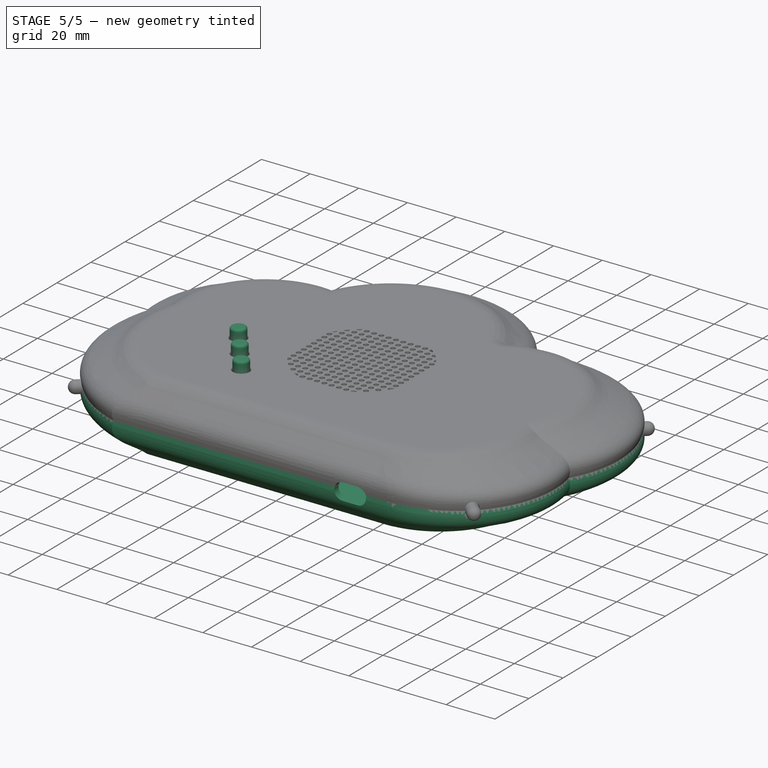
[diagram: stage 5 of 5 — iso view after this stage's code; geometry added in this stage tinted green]
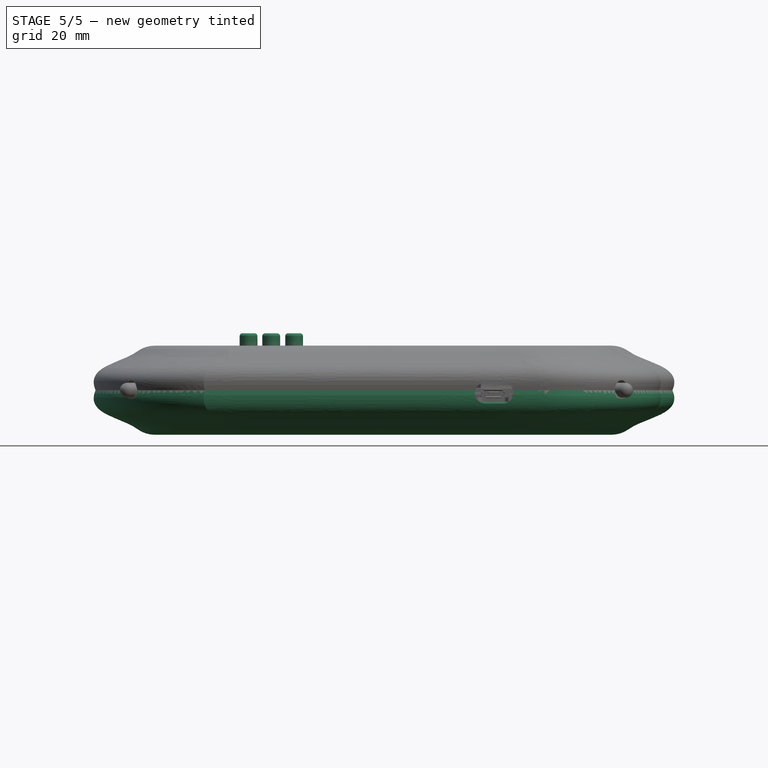
[diagram: stage 5 of 5 — front view after this stage's code; geometry added in this stage tinted green]
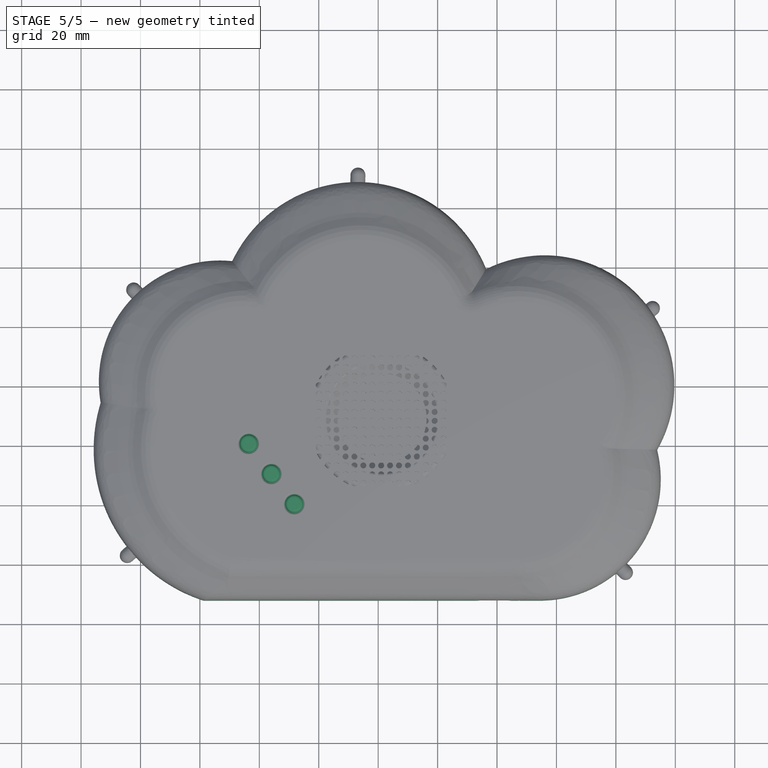
[diagram: stage 5 of 5 — top view after this stage's code; geometry added in this stage tinted green]
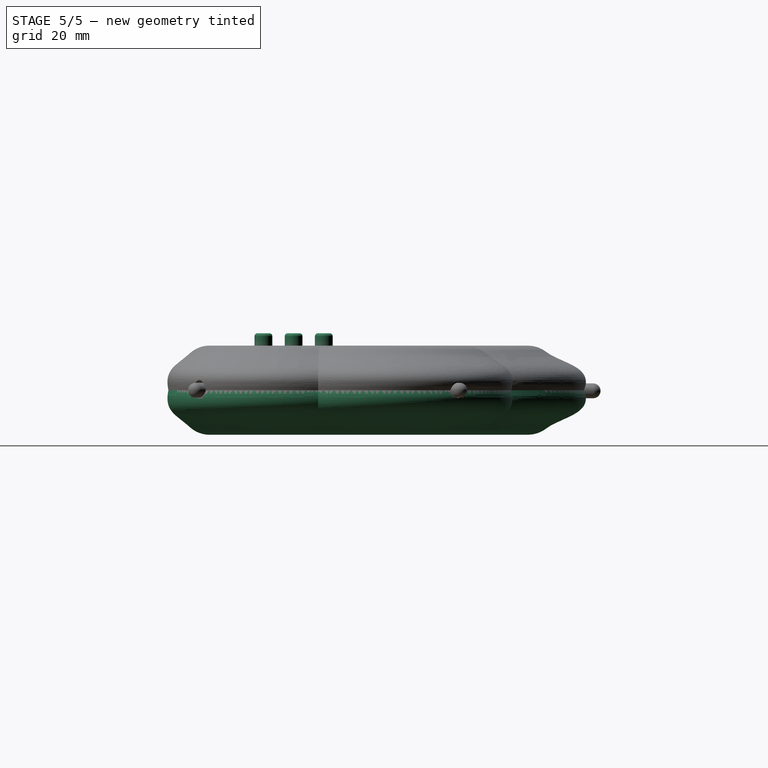
[diagram: stage 5 of 5 — right view after this stage's code; geometry added in this stage tinted green]
FEATURE [Part::FeaturePython] Clone002  label="Extrude001"  # Draft clone (typed FeaturePython)
  AttacherType = Attacher::AttachEngine3D
  Fuse = false
  Objects = -> [Extrude]
  Placement = pos=(0,-68.6,-5) rot=(0,0,1;0rad)
  Scale = (1,1,1)
FEATURE [Part::FeaturePython] Clone003  label="Extrude002"  # Draft clone (typed FeaturePython)
  AttacherType = Attacher::AttachEngine3D
  Fuse = false
  Objects = -> [Clone002]
  Placement = pos=(104.15,-68.6,-5) rot=(0,0,1;0rad)
  Scale = (1,1,1)
FEATURE [Part::FeaturePython] Clone004  label="Extrude003"  # Draft clone (typed FeaturePython)
  AttacherType = Attacher::AttachEngine3D
  Fuse = false
  Objects = -> [Clone003]
  Placement = pos=(104.15,0,-5) rot=(0,0,1;0rad)
  Scale = (1,1,1)
FEATURE [Part::FeaturePython] Clone005  label="дно"  # Draft clone (typed FeaturePython)
  AttacherType = Attacher::AttachEngine3D
  Fuse = false
  Objects = -> [Cut]
  Scale = (1,1,1)
FEATURE [Part::Cone] Cone004  label="Конус004"
  Angle = 360
  AttacherType = Attacher::AttachEngine3D
  Height = 5
  Placement = pos=(53.5326,39.1158,2) rot=(0,0,1;0rad)
  Radius1 = 3
  Radius2 = 1
FEATURE [Part::Cone] Cone005  label="Конус005"
  Angle = 360
  AttacherType = Attacher::AttachEngine3D
  Height = 5
  Placement = pos=(-50.62,-29.48,2) rot=(0,0,1;0rad)
  Radius1 = 3
  Radius2 = 1
FEATURE [Part::Cone] Cone006  label="Конус006"
  Angle = 360
  AttacherType = Attacher::AttachEngine3D
  Height = 5
  Placement = pos=(53.5326,-29.4842,2) rot=(0,0,1;0rad)
  Radius1 = 3
  Radius2 = 1
FEATURE [Part::MultiFuse] Fusion
  Shapes = -> [Cone005,Clone002]
FEATURE [Part::MultiFuse] Fusion004
  Shapes = -> [Cone006,Clone003]
FEATURE [Part::MultiFuse] Fusion005
  Shapes = -> [Cone004,Clone004]
FEATURE [Part::Compound] Compound
  Links = -> [Fusion,Fusion004,Fusion005,Fusion006]
FEATURE [Part::MultiFuse] Fusion007  label="дно001"
  Shapes = -> [Compound,Clone005]
FEATURE [Part::Compound] Compound001  label="кнопки"
  Links = -> [Fusion001,Fusion002,Fusion003]
FEATURE [Part::Cylinder] Cylinder006  label="Цилиндр006"
  Angle = 360
  AttacherType = Attacher::AttachEngine3D
  FirstAngle = 0
  Height = 16
  Placement = pos=(-6.89,92.95,14.89) rot=(1,0,0;1.5708rad)
  Radius = 2.5
  SecondAngle = 0
FEATURE [Part::Cylinder] Cylinder007  label="Цилиндр007"
  Angle = 360
  AttacherType = Attacher::AttachEngine3D
  FirstAngle = 0
  Height = 16
  Placement = pos=(95.11,48.95,14.89) rot=(0.851836,-0.370389,-0.370389;1.73047rad)
  Radius = 2.5
  SecondAngle = 0
FEATURE [Part::Cylinder] Cylinder008  label="Цилиндр008"
  Angle = 360
  AttacherType = Attacher::AttachEngine3D
  FirstAngle = 0
  Height = 16
  Placement = pos=(-83.89,53.95,14.89) rot=(0.8634,0.35675,0.35675;1.71715rad)
  Radius = 2.5
  SecondAngle = 0
FEATURE [Part::Cylinder] Cylinder009  label="Цилиндр009"
  Angle = 360
  AttacherType = Attacher::AttachEngine3D
  FirstAngle = 0
  Height = 16
  Placement = pos=(-86.89,-39,15.89) rot=(0.313789,0.671393,0.671393;2.53348rad)
  Radius = 2.5
  SecondAngle = 0
FEATURE [Part::Cylinder] Cylinder010  label="Цилиндр010"
  Angle = 360
  AttacherType = Attacher::AttachEngine3D
  FirstAngle = 0
  Height = 16
  Placement = pos=(75.11,-35,15.89) rot=(0.857931,0.363287,0.363287;1.72343rad)
  Radius = 2.5
  SecondAngle = 0
FEATURE [Part::Compound] Compound002
  Links = -> [Cylinder006,Cylinder007,Cylinder008,Cylinder009,Cylinder010]
FEATURE [Part::Cut] Cut002  label="дно002"
  Base = -> Fusion007
  Tool = -> Compound002
FEATURE [Sketcher::SketchObject] Sketch003
  FullyConstrained = false
  MapMode = 2
  Placement = pos=(40,-49,12) rot=(1,0,0;1.5708rad)
  sketch-geometry (6):
    g0: ArcOfCircle CenterX=-3.00386 CenterY=0 CenterZ=0 NormalX=0 NormalY=0 NormalZ=1 AngleXU=0 Radius=3.5 StartAngle=1.5708 EndAngle=4.71239
    g1: ArcOfCircle CenterX=2.99652 CenterY=-3.5e-15 CenterZ=0 NormalX=0 NormalY=0 NormalZ=1 AngleXU=0 Radius=3.5 StartAngle=4.71239 EndAngle=7.85398
    g2: LineSegment StartX=-3.00386 StartY=-3.5 StartZ=0 EndX=2.99652 EndY=-3.5 EndZ=0
    g3: LineSegment StartX=2.99652 StartY=3.5 StartZ=0 EndX=-3.00386 EndY=3.5 EndZ=0
    g4: LineSegment StartX=-0.0553689 StartY=3.5 StartZ=0 EndX=-0.0553689 EndY=-3.5 EndZ=0
    g5: LineSegment StartX=-6.50367 StartY=0.0363217 StartZ=0 EndX=6.49633 EndY=0.0363217 EndZ=0
  constraints (15):
    c: Tangent(g0,g2) = -1.5708
    c: Tangent(g2,g1) = -1.5708
    c: Tangent(g1,g3) = -1.5708
    c: Tangent(g3,g0) = -1.5708
    c: Equal(g0,g1)
    c: Horizontal(g2)
    c: PointOnObject(g0,g-1)
    c: PointOnObject(g4,g3)
    c: PointOnObject(g4,g2)
    c: Vertical(g4)
    c: Distance(g4) = 7
    c: PointOnObject(g5,g0)
    c: PointOnObject(g5,g1)
    c: Horizontal(g5)
    c: Distance(g5) = 13
FEATURE [Part::Extrusion] Extrude002  label="Extrude005"
  Base = -> Sketch003
  Dir = (0,-1,2e-16)
  DirMode = 2
  FaceMakerClass = Part::FaceMakerBullseye
  LengthFwd = 43
  LengthRev = 0
  Placement = pos=(-1,17,2) rot=(0,0,1;0rad)
  Solid = true
  Symmetric = false
FEATURE [Part::Cut] Cut004  label="дно003"
  Base = -> Cut002
  Tool = -> Extrude002
FEATURE [Part::Cylinder] Cylinder016  label="Цилиндр016"
  Angle = 360
  AttacherType = Attacher::AttachEngine3D
  FirstAngle = 0
  Height = 13
  Placement = pos=(0,0,2) rot=(0,0,1;0rad)
  Radius = 4
  SecondAngle = 0
FEATURE [Part::Thickness] Thickness
  Faces = -> Cylinder016 [Face2]
  Intersection = false
  Join = 2
  Mode = 0
  SelfIntersection = false
  Value = 1
FEATURE [Part::FeaturePython] Tube  # WARN: FeaturePython — macro-defined, semantics opaque (R4)
  AttacherType = Attacher::AttachEngine3D
  Height = 2
  InnerRadius = 4
  OuterRadius = 7
  Placement = pos=(0,0,2) rot=(0,0,1;0rad)
FEATURE [Part::MultiFuse] Fusion008
  Placement = pos=(-62,2,0) rot=(0,0,1;0rad)
  Shapes = -> [Tube,Thickness]
FEATURE [Part::Fillet] Fillet008
  Base = -> Fusion008
  Edges = 1 edges r=0.5: [Edge8]
FEATURE [Part::FeaturePython] Screw003  label="M3x10-Винт001"  # Fasteners workbench fastener (typed FeaturePython)
  Placement = pos=(-62,2,15) rot=(0,1,0;3.14159rad)
  diameter = 1
  invert = false
  leftHanded = false
  length = 4
  lengthCustom = 10
  matchOuter = false
  offset = 0
  thread = true
  type = 22
FEATURE [Part::Cut] Cut008  label="крепление дно"
  Base = -> Fillet008
  Tool = -> Screw003
FEATURE [Part::Cut] Cut009  label="крепление дно001"
  Base = -> Fillet009
  Placement = pos=(128,-20,0) rot=(0,0,1;0rad)
  Tool = -> Screw004
FEATURE [Sketcher::SketchObject] Sketch006
  ExternalGeometry = -> [Cut009,Cut011,Cut008]
  FullyConstrained = false
  Placement = pos=(0,0,-5) rot=(0,0,1;0rad)
  sketch-geometry (3):
    g0: Circle CenterX=66 CenterY=-18 CenterZ=0 NormalX=0 NormalY=0 NormalZ=1 AngleXU=0 Radius=3.95281
    g1: Circle CenterX=-7 CenterY=57 CenterZ=0 NormalX=0 NormalY=0 NormalZ=1 AngleXU=0 Radius=3.95834
    g2: Circle CenterX=-62 CenterY=2 CenterZ=0 NormalX=0 NormalY=0 NormalZ=1 AngleXU=0 Radius=3.9481
FEATURE [Part::Extrusion] Extrude004  label="Extrude007"
  Base = -> Sketch006
  Dir = (0,0,1)
  DirMode = 2
  FaceMakerClass = Part::FaceMakerBullseye
  LengthFwd = 10
  LengthRev = 0
  Solid = true
  Symmetric = false
FEATURE [Part::Cut] Cut013  label="дно004"
  Base = -> Cut004
  Tool = -> Extrude004
FEATURE [Part::MultiFuse] Fusion011
  Shapes = -> [Cut011,Cut009,Cut008]
FEATURE [Part::FeaturePython] Connect  label="дно005"  # WARN: FeaturePython — macro-defined, semantics opaque (R4)
  Objects = -> [Fusion011,Cut013]
  Tolerance = 0
FEATURE [Part::MultiFuse] Fusion015  label="дно006"
  Shapes = -> [Connect,Compound009]
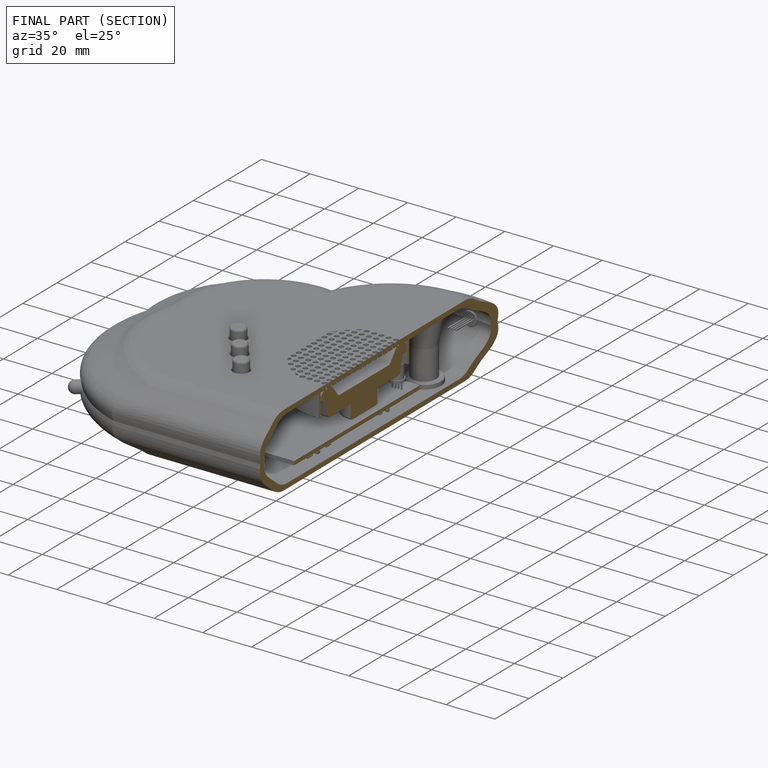
[diagram: finished part — half-section view (interior)]
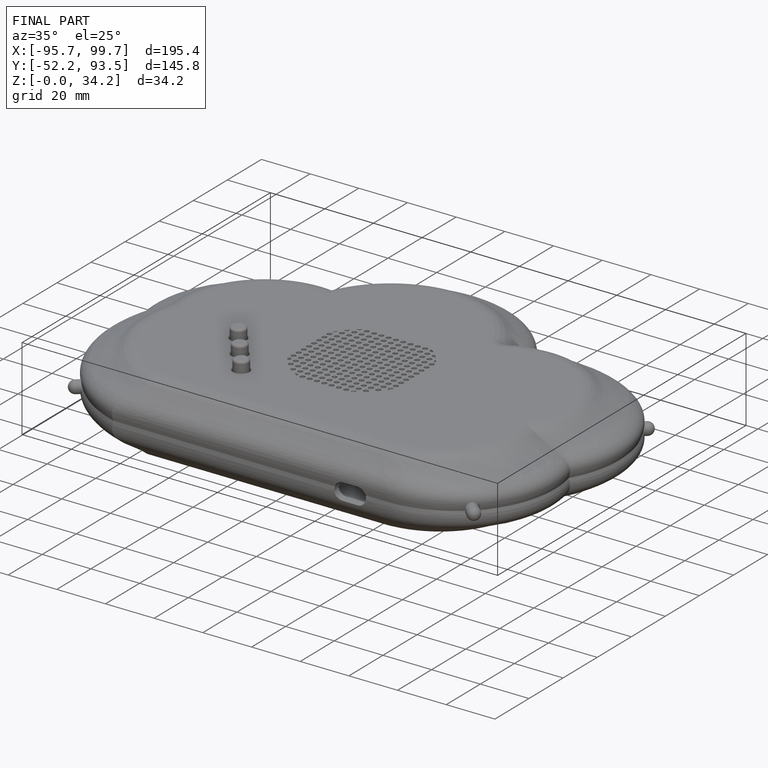
[diagram: finished part — iso view with bounding-box wireframe]
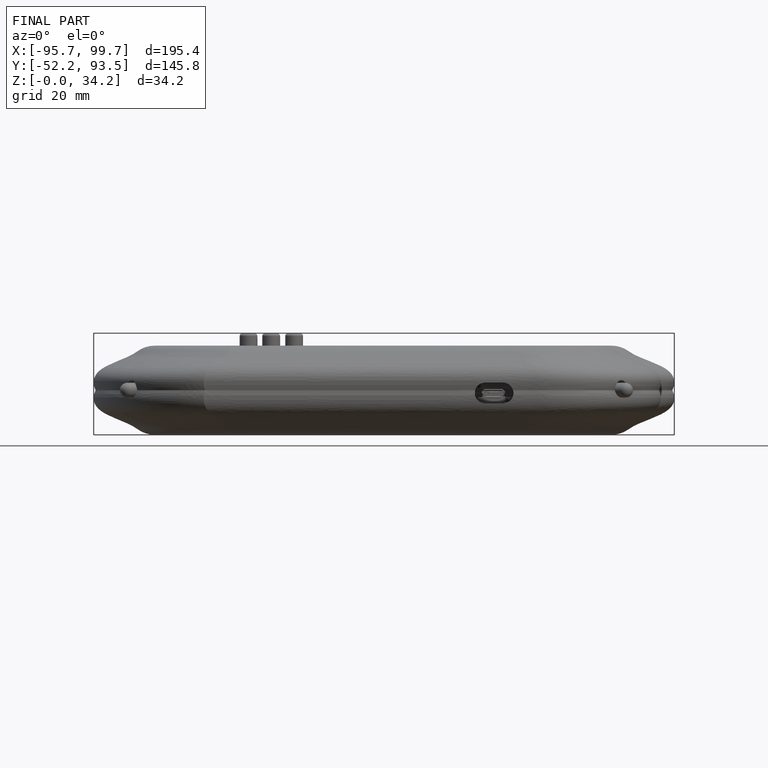
[diagram: finished part — front view with bounding-box wireframe]
